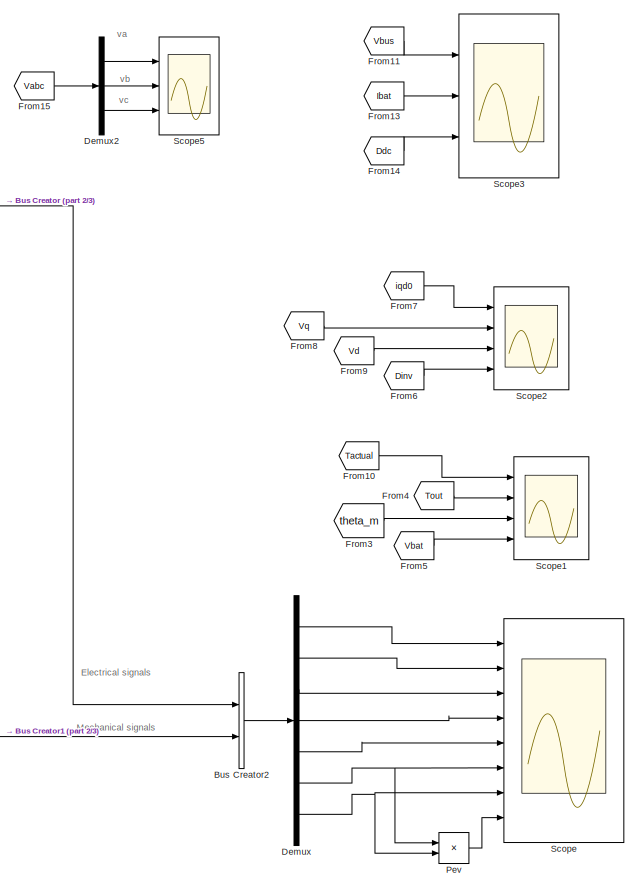
[diagram: root canvas - part 1/3, right side, full height]
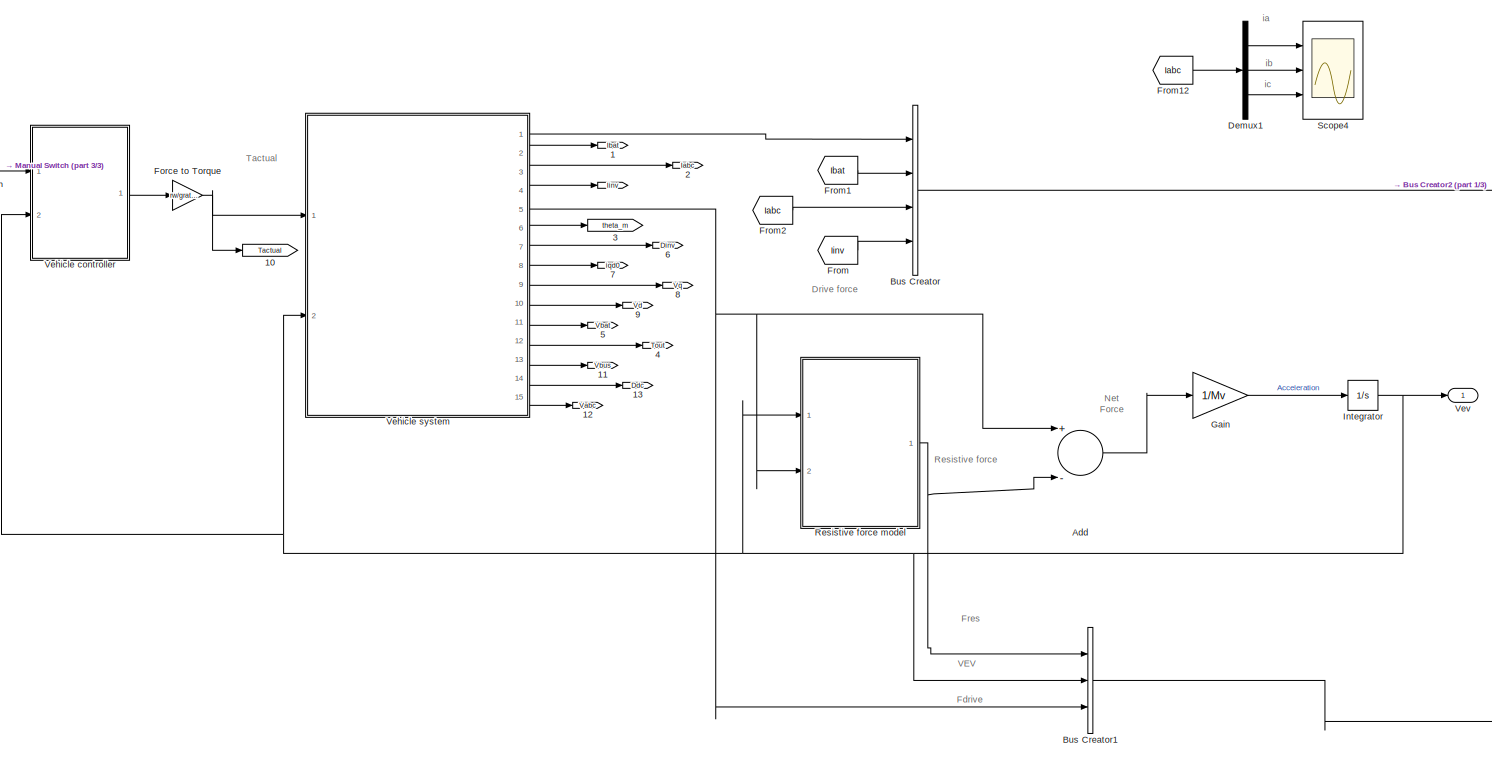
[diagram: root canvas - part 2/3, center side, full height]
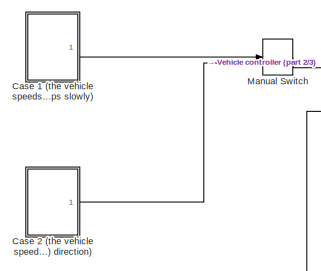
[diagram: root canvas - part 3/3, top left region]
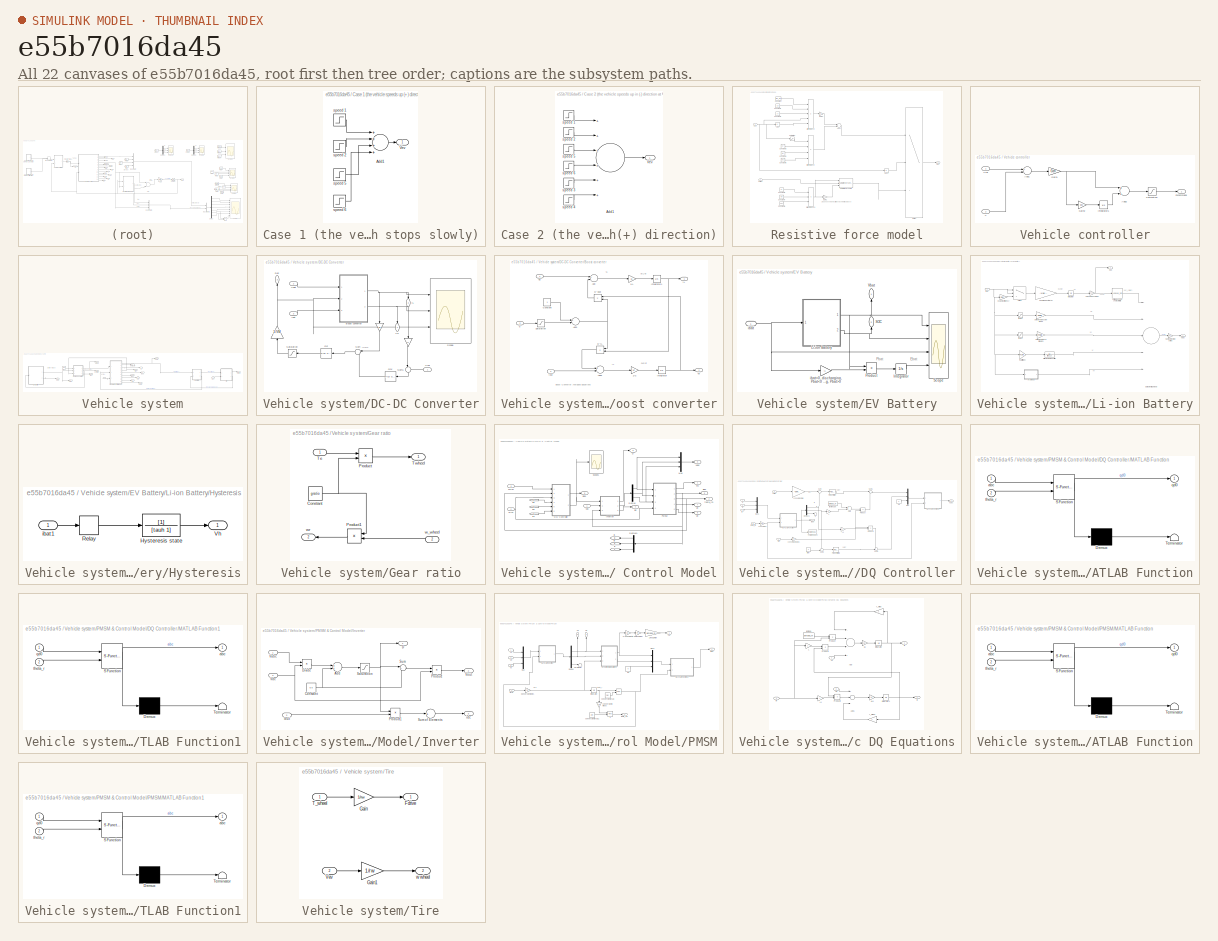
[diagram: thumbnail index - all 22 canvases of the model, root first then tree order]
MODEL slx_e55b7016da45
KIND model
CONFIG AbsTol = auto
CONFIG FixedStep = auto
CONFIG MaxStep = 1e-3
CONFIG MinStep = auto
CONFIG RelTol = 1e-3
CONFIG SampleTimeConstraint = Unconstrained
CONFIG Solver = ode15s
CONFIG SolverMode = Auto
CONFIG SolverName = ode15s
CONFIG StartTime = 0.0
CONFIG StopTime = tstop
BLOCK [Goto]  
  GotoTag = Iinv
BLOCK [Goto]  1
  GotoTag = Ibat
BLOCK [Goto]  10
  GotoTag = Tactual
BLOCK [Goto]  11
  GotoTag = Vbus
BLOCK [Goto]  12
  GotoTag = Vabc
BLOCK [Goto]  13
  GotoTag = Ddc
BLOCK [Goto]  2
  GotoTag = Iabc
BLOCK [Goto]  3
  GotoTag = theta_m
BLOCK [Goto]  4
  GotoTag = Tout
BLOCK [Goto]  5
  GotoTag = Vbat
BLOCK [Goto]  6
  GotoTag = Dinv
BLOCK [Goto]  7
  GotoTag = iqd0
BLOCK [Goto]  8
  GotoTag = Vq
BLOCK [Goto]  9
  GotoTag = Vd
BLOCK [Outport]  Vev
  IconDisplay = Port number
BLOCK [Sum] Add
  InputSameDT = off
  Inputs = +-
  OutDataTypeStr = Inherit: Inherit via internal rule
  Ports = [2, 1]
  SaturateOnIntegerOverflow = off
BLOCK [BusCreator] Bus Creator
  DisplayOption = bar
  InheritFromInputs = on
  Inputs = 4
  Ports = [4, 1]
BLOCK [BusCreator] Bus Creator1
  DisplayOption = bar
  InheritFromInputs = on
  Inputs = 3
  Ports = [3, 1]
BLOCK [BusCreator] Bus Creator2
  DisplayOption = bar
  InheritFromInputs = on
  Inputs = 2
  Ports = [2, 1]
BLOCK [SubSystem] Case 1 (the vehicle speeds up (+) direction  at first, then stops slowly)
  Ports = [0, 1]
  RequestExecContextInheritance = off
  Variant = off
BLOCK [Sum] Case 1 (the vehicle speeds up (+) direction  at first, then stops slowly)/Add1
  InputSameDT = off
  Inputs = ++++
  OutDataTypeStr = Inherit: Inherit via internal rule
  Ports = [4, 1]
  SaturateOnIntegerOverflow = off
BLOCK [Outport] Case 1 (the vehicle speeds up (+) direction  at first, then stops slowly)/Vev 
  IconDisplay = Port number
BLOCK [Step] Case 1 (the vehicle speeds up (+) direction  at first, then stops slowly)/speed 1
  After = vref_2
  Before = vref_1
  SampleTime = 0
  Time = tstop/5
BLOCK [Step] Case 1 (the vehicle speeds up (+) direction  at first, then stops slowly)/speed 2
  After = -vref_2+vref_1
  SampleTime = 0
  Time = 2*(tstop/5)
BLOCK [Step] Case 1 (the vehicle speeds up (+) direction  at first, then stops slowly)/speed 5
  After = -vref_1/2
  SampleTime = 0
  Time = 3*(tstop/5)
BLOCK [Step] Case 1 (the vehicle speeds up (+) direction  at first, then stops slowly)/speed 6
  After = -vref_1/2
  SampleTime = 0
  Time = 4*(tstop/5)
BLOCK [SubSystem] Case 2 (the vehicle speeds up in (-) direction at first, then stops slower and gets faster in (+) direction)
  Ports = [0, 1]
  RequestExecContextInheritance = off
  Variant = off
BLOCK [Sum] Case 2 (the vehicle speeds up in (-) direction at first, then stops slower and gets faster in (+) direction)/Add1
  InputSameDT = off
  Inputs = ++++++
  OutDataTypeStr = Inherit: Inherit via internal rule
  Ports = [6, 1]
  SaturateOnIntegerOverflow = off
BLOCK [Outport] Case 2 (the vehicle speeds up in (-) direction at first, then stops slower and gets faster in (+) direction)/Vev 
  IconDisplay = Port number
BLOCK [Step] Case 2 (the vehicle speeds up in (-) direction at first, then stops slower and gets faster in (+) direction)/speed 1
  After = -vref_2/2
  Before = -vref_1/2
  SampleTime = 0
  Time = tstop/7
BLOCK [Step] Case 2 (the vehicle speeds up in (-) direction at first, then stops slower and gets faster in (+) direction)/speed 2
  After = vref_2/4
  SampleTime = 0
  Time = 2*(tstop/7)
BLOCK [Step] Case 2 (the vehicle speeds up in (-) direction at first, then stops slower and gets faster in (+) direction)/speed 3
  After = vref_1/4
  SampleTime = 0
  Time = 5*(tstop/7)
BLOCK [Step] Case 2 (the vehicle speeds up in (-) direction at first, then stops slower and gets faster in (+) direction)/speed 4
  After = (vref_2-vref_1)/2
  SampleTime = 0
  Time = 6*(tstop/7)
BLOCK [Step] Case 2 (the vehicle speeds up in (-) direction at first, then stops slower and gets faster in (+) direction)/speed 5
  After = vref_2/4
  SampleTime = 0
  Time = 3*(tstop/7)
BLOCK [Step] Case 2 (the vehicle speeds up in (-) direction at first, then stops slower and gets faster in (+) direction)/speed 6
  After = vref_1/4
  SampleTime = 0
  Time = 4*(tstop/7)
BLOCK [Demux] Demux
  DisplayOption = bar
  Outputs = 7
  Ports = [1, 7]
BLOCK [Demux] Demux1
  DisplayOption = bar
  Outputs = 3
  Ports = [1, 3]
BLOCK [Demux] Demux2
  DisplayOption = bar
  Outputs = 3
  Ports = [1, 3]
BLOCK [Gain] Force to Torque
  Gain = rw/gratio
  OutDataTypeStr = Inherit: Inherit via internal rule
  ParamDataTypeStr = Inherit: Inherit via internal rule
  SaturateOnIntegerOverflow = off
BLOCK [From] From
  GotoTag = Iinv
BLOCK [From] From1
  GotoTag = Ibat
BLOCK [From] From10
  GotoTag = Tactual
BLOCK [From] From11
  GotoTag = Vbus
BLOCK [From] From12
  GotoTag = Iabc
BLOCK [From] From13
  GotoTag = Ibat
BLOCK [From] From14
  GotoTag = Ddc
BLOCK [From] From15
  GotoTag = Vabc
BLOCK [From] From2
  GotoTag = Iabc
BLOCK [From] From3
  GotoTag = theta_m
BLOCK [From] From4
  GotoTag = Tout
BLOCK [From] From5
  GotoTag = Vbat
BLOCK [From] From6
  GotoTag = Dinv
BLOCK [From] From7
  GotoTag = iqd0
BLOCK [From] From8
  GotoTag = Vq
BLOCK [From] From9
  GotoTag = Vd
BLOCK [Gain] Gain
  Gain = 1/Mv
  OutDataTypeStr = Inherit: Inherit via internal rule
  ParamDataTypeStr = Inherit: Inherit via internal rule
  SaturateOnIntegerOverflow = off
BLOCK [Integrator] Integrator
  Ports = [1, 1]
BLOCK [ManualSwitch] Manual Switch
  CurrentSetting = 0
BLOCK [Product] Pev
  InputSameDT = off
  OutDataTypeStr = Inherit: Inherit via internal rule
  Ports = [2, 1]
  RndMeth = Floor
  SaturateOnIntegerOverflow = off
BLOCK [SubSystem] Resistive force model
  Ports = [2, 1]
  RequestExecContextInheritance = off
  Variant = off
BLOCK [Abs] Resistive force model/Abs
  SaturateOnIntegerOverflow = off
  ZeroCross = off
BLOCK [Abs] Resistive force model/Abs1
  SaturateOnIntegerOverflow = off
BLOCK [Sum] Resistive force model/Add1
  InputSameDT = off
  OutDataTypeStr = Inherit: Inherit via internal rule
  Ports = [2, 1]
  SaturateOnIntegerOverflow = off
BLOCK [Constant] Resistive force model/Constant
  Value = rho_air
BLOCK [Constant] Resistive force model/Constant1
  Value = Cd
BLOCK [Constant] Resistive force model/Constant2
  Value = Av
BLOCK [Constant] Resistive force model/Constant3
  Value = Cr
BLOCK [Constant] Resistive force model/Constant4
  Value = Mv
BLOCK [Constant] Resistive force model/Constant5
  Value = 9.81
BLOCK [Constant] Resistive force model/Constant6
  Value = Cr
BLOCK [Constant] Resistive force model/Constant7
  Value = Mv
BLOCK [Constant] Resistive force model/Constant8
  Value = 9.81
BLOCK [Inport] Resistive force model/Fdrive 
  IconDisplay = Port number
  Port = 2
BLOCK [Outport] Resistive force model/Fres
  IconDisplay = Port number
BLOCK [Gain] Resistive force model/Gain1
  Gain = -1
  OutDataTypeStr = Inherit: Inherit via internal rule
  ParamDataTypeStr = Inherit: Inherit via internal rule
  SaturateOnIntegerOverflow = off
BLOCK [Gain] Resistive force model/Gain2
  Gain = 1/2
  OutDataTypeStr = Inherit: Inherit via internal rule
  ParamDataTypeStr = Inherit: Inherit via internal rule
  SaturateOnIntegerOverflow = off
BLOCK [Saturate] Resistive force model/Saturation
  InputPortMap = u0
  LowerLimit = -1
  Ports = [1, 1]
  UpperLimit = 1
BLOCK [Reference] Resistive force model/Saturation Dynamic  REF=simulink/Discontinuities/Saturation
Dynamic
  Ports = [3, 1]
  SourceBlock = simulink/Discontinuities/Saturation\nDynamic
  SourceType = Saturation Dynamic
BLOCK [Switch] Resistive force model/Switch
  InputSameDT = off
  SaturateOnIntegerOverflow = off
  ZeroCross = off
BLOCK [Inport] Resistive force model/Vev 
  IconDisplay = Port number
BLOCK [Product] Resistive force model/air resistance 
  InputSameDT = off
  Inputs = 5
  OutDataTypeStr = Inherit: Inherit via internal rule
  Ports = [5, 1]
  RndMeth = Floor
  SaturateOnIntegerOverflow = off
BLOCK [Product] Resistive force model/roll resistance
  InputSameDT = off
  Inputs = 4
  OutDataTypeStr = Inherit: Inherit via internal rule
  Ports = [4, 1]
  RndMeth = Floor
  SaturateOnIntegerOverflow = off
BLOCK [Product] Resistive force model/roll resistance1
  InputSameDT = off
  Inputs = 3
  OutDataTypeStr = Inherit: Inherit via internal rule
  Ports = [3, 1]
  RndMeth = Floor
  SaturateOnIntegerOverflow = off
BLOCK [Scope] Scope
  NumInputPorts = 8
  Ports = [8]
  ScopeSpecificationString = Simulink.scopes.TimeScopeBlockCfg('CurrentConfiguration', extmgr.ConfigurationSet(extmgr.Configuration('Core','General UI',true),extmgr.Configuration('Core','Source UI',true),extmgr.Configuration('Sources','WiredSimulink',true),extmgr.Configuration('Visuals','Time Domain',true,'SerializedDisplays',{struct('MinYLimReal','73.72575','MaxYLimReal','75.19045','YLabelReal','','MinYLimMag','  0.00000','M...<+6170ch>
BLOCK [Scope] Scope1
  NumInputPorts = 4
  Ports = [4]
  ScopeSpecificationString = Simulink.scopes.TimeScopeBlockCfg('CurrentConfiguration', extmgr.ConfigurationSet(extmgr.Configuration('Core','General UI',true),extmgr.Configuration('Core','Source UI',true),extmgr.Configuration('Sources','WiredSimulink',true,'DataLoggingVariableName','ScopeData1'),extmgr.Configuration('Visuals','Time Domain',true,'SerializedDisplays',{struct('MinYLimReal','-245.16341','MaxYLimReal','206.47065','...<+3415ch>
BLOCK [Scope] Scope2
  NumInputPorts = 4
  Ports = [4]
  ScopeSpecificationString = Simulink.scopes.TimeScopeBlockCfg('CurrentConfiguration', extmgr.ConfigurationSet(extmgr.Configuration('Core','General UI',true),extmgr.Configuration('Core','Source UI',true),extmgr.Configuration('Sources','WiredSimulink',true,'DataLoggingVariableName','ScopeData2'),extmgr.Configuration('Visuals','Time Domain',true,'SerializedDisplays',{struct('MinYLimReal','-130.14829','MaxYLimReal','310.51951','...<+3452ch>
BLOCK [Scope] Scope3
  NumInputPorts = 3
  Ports = [3]
  ScopeSpecificationString = Simulink.scopes.TimeScopeBlockCfg('CurrentConfiguration', extmgr.ConfigurationSet(extmgr.Configuration('Core','General UI',true),extmgr.Configuration('Core','Source UI',true),extmgr.Configuration('Sources','WiredSimulink',true,'DataLoggingVariableName','ScopeData2'),extmgr.Configuration('Visuals','Time Domain',true,'SerializedDisplays',{struct('MinYLimReal','-88.65186','MaxYLimReal','797.86672','Y...<+2760ch>
BLOCK [Scope] Scope4
  NumInputPorts = 3
  Ports = [3]
  ScopeSpecificationString = Simulink.scopes.TimeScopeBlockCfg('CurrentConfiguration', extmgr.ConfigurationSet(extmgr.Configuration('Core','General UI',true),extmgr.Configuration('Core','Source UI',true),extmgr.Configuration('Sources','WiredSimulink',true,'DataLoggingVariableName','ScopeData1','DataLoggingSaveFormat','Array','DataLoggingDecimation','1','DataLoggingDecimateData',true),extmgr.Configuration('Visuals','Time Domai...<+2870ch>
BLOCK [Scope] Scope5
  NumInputPorts = 3
  Ports = [3]
  ScopeSpecificationString = Simulink.scopes.TimeScopeBlockCfg('CurrentConfiguration', extmgr.ConfigurationSet(extmgr.Configuration('Core','General UI',true),extmgr.Configuration('Core','Source UI',true),extmgr.Configuration('Sources','WiredSimulink',true,'DataLoggingVariableName','ScopeData2','DataLoggingSaveFormat','Array','DataLoggingDecimation','1','DataLoggingDecimateData',true),extmgr.Configuration('Visuals','Time Domai...<+2870ch>
BLOCK [SubSystem] Vehicle controller
  Ports = [2, 1]
  RequestExecContextInheritance = off
  Variant = off
BLOCK [Sum] Vehicle controller/Add1
  InputSameDT = off
  Inputs = +-
  OutDataTypeStr = Inherit: Inherit via internal rule
  Ports = [2, 1]
  SaturateOnIntegerOverflow = off
BLOCK [Sum] Vehicle controller/Add2
  InputSameDT = off
  OutDataTypeStr = Inherit: Inherit via internal rule
  Ports = [2, 1]
  SaturateOnIntegerOverflow = off
BLOCK [Outport] Vehicle controller/Fvcommand
  IconDisplay = Port number
BLOCK [Gain] Vehicle controller/Gain1
  Gain = Gcm
  OutDataTypeStr = Inherit: Inherit via internal rule
  ParamDataTypeStr = Inherit: Inherit via internal rule
  SaturateOnIntegerOverflow = off
BLOCK [Gain] Vehicle controller/Gain2
  Gain = wz2
  OutDataTypeStr = Inherit: Inherit via internal rule
  ParamDataTypeStr = Inherit: Inherit via internal rule
  SaturateOnIntegerOverflow = off
BLOCK [Integrator] Vehicle controller/Integrator1
  Ports = [1, 1]
BLOCK [Saturate] Vehicle controller/Saturation
  InputPortMap = u0
  LowerLimit = -Fv_max
  Ports = [1, 1]
  UpperLimit = Fv_max
BLOCK [Inport] Vehicle controller/V
  IconDisplay = Port number
  Port = 2
BLOCK [Inport] Vehicle controller/Vref
  IconDisplay = Port number
BLOCK [SubSystem] Vehicle system
  Ports = [2, 15]
  RequestExecContextInheritance = off
  Variant = off
BLOCK [Inport] Vehicle system/ 
  IconDisplay = Port number
BLOCK [Outport] Vehicle system/D
  IconDisplay = Port number
  Port = 7
BLOCK [SubSystem] Vehicle system/DC-DC Converter
  Ports = [3, 3]
  RequestExecContextInheritance = off
  Variant = off
BLOCK [Gain] Vehicle system/DC-DC Converter/  
  Gain = Rs
  OutDataTypeStr = Inherit: Inherit via internal rule
  ParamDataTypeStr = Inherit: Inherit via internal rule
  SaturateOnIntegerOverflow = off
BLOCK [Gain] Vehicle system/DC-DC Converter/     
  Gain = 1/VM
  OutDataTypeStr = Inherit: Inherit via internal rule
  ParamDataTypeStr = Inherit: Inherit via internal rule
  SaturateOnIntegerOverflow = off
BLOCK [Gain] Vehicle system/DC-DC Converter/           
  Gain = H
  OutDataTypeStr = Inherit: Inherit via internal rule
  ParamDataTypeStr = Inherit: Inherit via internal rule
  SaturateOnIntegerOverflow = off
BLOCK [SubSystem] Vehicle system/DC-DC Converter/Boost converter
  Ports = [3, 2]
  RequestExecContextInheritance = off
  Variant = off
BLOCK [Gain] Vehicle system/DC-DC Converter/Boost converter/1//C
  Gain = 1/C
  OutDataTypeStr = Inherit: Inherit via internal rule
  ParamDataTypeStr = Inherit: Inherit via internal rule
  SaturateOnIntegerOverflow = off
BLOCK [Gain] Vehicle system/DC-DC Converter/Boost converter/1//L
  Gain = 1/L
  OutDataTypeStr = Inherit: Inherit via internal rule
  ParamDataTypeStr = Inherit: Inherit via internal rule
  SaturateOnIntegerOverflow = off
BLOCK [Sum] Vehicle system/DC-DC Converter/Boost converter/Add
  InputSameDT = off
  Inputs = +-
  OutDataTypeStr = Inherit: Inherit via internal rule
  Ports = [2, 1]
  SaturateOnIntegerOverflow = off
BLOCK [Sum] Vehicle system/DC-DC Converter/Boost converter/Add1
  InputSameDT = off
  Inputs = +-
  OutDataTypeStr = Inherit: Inherit via internal rule
  Ports = [2, 1]
  SaturateOnIntegerOverflow = off
BLOCK [Sum] Vehicle system/DC-DC Converter/Boost converter/Add2
  InputSameDT = off
  Inputs = +-
  OutDataTypeStr = Inherit: Inherit via internal rule
  Ports = [2, 1]
  SaturateOnIntegerOverflow = off
BLOCK [Constant] Vehicle system/DC-DC Converter/Boost converter/Constant
BLOCK [Product] Vehicle system/DC-DC Converter/Boost converter/D' Vout
  InputSameDT = off
  OutDataTypeStr = Inherit: Inherit via internal rule
  Ports = [2, 1]
  RndMeth = Floor
  SaturateOnIntegerOverflow = off
BLOCK [Product] Vehicle system/DC-DC Converter/Boost converter/D' iL
  InputSameDT = off
  OutDataTypeStr = Inherit: Inherit via internal rule
  Ports = [2, 1]
  RndMeth = Floor
  SaturateOnIntegerOverflow = off
BLOCK [Integrator] Vehicle system/DC-DC Converter/Boost converter/Integrator
  Ports = [1, 1]
BLOCK [Integrator] Vehicle system/DC-DC Converter/Boost converter/Integrator1
  Ports = [1, 1]
BLOCK [Saturate] Vehicle system/DC-DC Converter/Boost converter/Saturation
  InputPortMap = u0
  LowerLimit = 0
  Ports = [1, 1]
  UpperLimit = 1
BLOCK [Inport] Vehicle system/DC-DC Converter/Boost converter/Vg
  IconDisplay = Port number
BLOCK [Outport] Vehicle system/DC-DC Converter/Boost converter/Vo
  IconDisplay = Port number
  Port = 2
BLOCK [Inport] Vehicle system/DC-DC Converter/Boost converter/d
  IconDisplay = Port number
  Port = 2
BLOCK [Outport] Vehicle system/DC-DC Converter/Boost converter/iL
  IconDisplay = Port number
BLOCK [Inport] Vehicle system/DC-DC Converter/Boost converter/iout
  IconDisplay = Port number
  Port = 3
BLOCK [Outport] Vehicle system/DC-DC Converter/Ddc
  IconDisplay = Port number
  Port = 3
BLOCK [Reference] Vehicle system/DC-DC Converter/Gci  REF=simulink/Continuous/PID Controller
  Ports = [1, 1]
  SourceBlock = simulink/Continuous/PID Controller
  SourceType = PID 1dof
BLOCK [Reference] Vehicle system/DC-DC Converter/Gcv  REF=simulink/Continuous/PID Controller
  Ports = [1, 1]
  SourceBlock = simulink/Continuous/PID Controller
  SourceType = PID 1dof
BLOCK [Outport] Vehicle system/DC-DC Converter/IL
  IconDisplay = Port number
  Port = 2
BLOCK [Saturate] Vehicle system/DC-DC Converter/Saturation
  InputPortMap = u0
  LowerLimit = 0
  Ports = [1, 1]
  UpperLimit = 1
BLOCK [Scope] Vehicle system/DC-DC Converter/Scope
  NumInputPorts = 3
  Ports = [3]
  ScopeSpecificationString = Simulink.scopes.TimeScopeBlockCfg('CurrentConfiguration', extmgr.ConfigurationSet(extmgr.Configuration('Core','General UI',true),extmgr.Configuration('Core','Source UI',true),extmgr.Configuration('Sources','WiredSimulink',true,'DataLoggingVariableName','ScopeData1'),extmgr.Configuration('Visuals','Time Domain',true,'SerializedDisplays',{struct('MinYLimReal','-344.69429','MaxYLimReal','479.64599','...<+2685ch>
BLOCK [Sum] Vehicle system/DC-DC Converter/Sum
  IconShape = round
  InputSameDT = off
  Inputs = |-+
  OutDataTypeStr = Inherit: Inherit via internal rule
  Ports = [2, 1]
  SaturateOnIntegerOverflow = off
BLOCK [Sum] Vehicle system/DC-DC Converter/Sum1
  IconShape = round
  InputSameDT = off
  Inputs = |-+
  OutDataTypeStr = Inherit: Inherit via internal rule
  Ports = [2, 1]
  SaturateOnIntegerOverflow = off
BLOCK [Inport] Vehicle system/DC-DC Converter/Vbat
  IconDisplay = Port number
  Port = 2
BLOCK [Outport] Vehicle system/DC-DC Converter/Vo
  IconDisplay = Port number
BLOCK [Inport] Vehicle system/DC-DC Converter/Vref
  IconDisplay = Port number
BLOCK [Inport] Vehicle system/DC-DC Converter/iout
  IconDisplay = Port number
  Port = 3
BLOCK [Outport] Vehicle system/Ddc
  IconDisplay = Port number
  Port = 14
BLOCK [SubSystem] Vehicle system/EV Battery
  Ports = [1, 2]
  RequestExecContextInheritance = off
  Variant = off
BLOCK [Integrator] Vehicle system/EV Battery/Integrator
  Ports = [1, 1]
BLOCK [SubSystem] Vehicle system/EV Battery/Li-ion Battery
  Ports = [1, 2]
  RequestExecContextInheritance = off
  Variant = off
BLOCK [Gain] Vehicle system/EV Battery/Li-ion Battery/Cnom (Capacity in Ah)
  Gain = -1/(Mp*Cnom*3600)
  OutDataTypeStr = Inherit: Inherit via internal rule
  ParamDataTypeStr = Inherit: Inherit via internal rule
  SaturateOnIntegerOverflow = off
BLOCK [Gain] Vehicle system/EV Battery/Li-ion Battery/Coulomb efficiency
  Gain = etaC
  OutDataTypeStr = Inherit: Inherit via internal rule
  ParamDataTypeStr = Inherit: Inherit via internal rule
  SaturateOnIntegerOverflow = off
BLOCK [TransferFcn] Vehicle system/EV Battery/Li-ion Battery/Diffusion low-pass filter
  Denominator = [tau1 1]
BLOCK [SubSystem] Vehicle system/EV Battery/Li-ion Battery/Hysteresis
  Ports = [1, 1]
  RequestExecContextInheritance = off
  Variant = off
BLOCK [TransferFcn] Vehicle system/EV Battery/Li-ion Battery/Hysteresis/Hysteresis state
  Denominator = [tauh 1]
BLOCK [Relay] Vehicle system/EV Battery/Li-ion Battery/Hysteresis/Relay
  InputProcessing = Elements as channels (sample based)
  OffOutputValue = -Vm
  OffSwitchValue = -0.01
  OnOutputValue = Vm
  OnSwitchValue = 0.01
BLOCK [Outport] Vehicle system/EV Battery/Li-ion Battery/Hysteresis/Vh
  IconDisplay = Port number
BLOCK [Inport] Vehicle system/EV Battery/Li-ion Battery/Hysteresis/ibat1
  IconDisplay = Port number
BLOCK [Integrator] Vehicle system/EV Battery/Li-ion Battery/Integrator
  InitialCondition = SOC_0
  LimitOutput = on
  LowerSaturationLimit = SOC_0/2.5
  Ports = [1, 1]
  UpperSaturationLimit = SOC_1
BLOCK [Gain] Vehicle system/EV Battery/Li-ion Battery/Number of cells in series
  Gain = Ns
  OutDataTypeStr = Inherit: Inherit via internal rule
  ParamDataTypeStr = Inherit: Inherit via internal rule
  SaturateOnIntegerOverflow = off
BLOCK [Sum] Vehicle system/EV Battery/Li-ion Battery/Output voltage loop
  InputSameDT = off
  Inputs = +----
  OutDataTypeStr = Inherit: Inherit via internal rule
  Ports = [5, 1]
  SaturateOnIntegerOverflow = off
BLOCK [Gain] Vehicle system/EV Battery/Li-ion Battery/Percent Conversion 
  Gain = 100
  OutDataTypeStr = Inherit: Inherit via internal rule
  ParamDataTypeStr = Inherit: Inherit via internal rule
  SaturateOnIntegerOverflow = off
BLOCK [Gain] Vehicle system/EV Battery/Li-ion Battery/R1(diffision)
  Gain = R1/Mp
  OutDataTypeStr = Inherit: Inherit via internal rule
  ParamDataTypeStr = Inherit: Inherit via internal rule
  SaturateOnIntegerOverflow = off
BLOCK [Outport] Vehicle system/EV Battery/Li-ion Battery/SOC
  IconDisplay = Port number
  Port = 2
BLOCK [Gain] Vehicle system/EV Battery/Li-ion Battery/Series resistance for ibat<0
  Gain = Rn/Mp
  OutDataTypeStr = Inherit: Inherit via internal rule
  ParamDataTypeStr = Inherit: Inherit via internal rule
  SaturateOnIntegerOverflow = off
BLOCK [Gain] Vehicle system/EV Battery/Li-ion Battery/Series resistance for ibat>0
  Gain = Rp/Mp
  OutDataTypeStr = Inherit: Inherit via internal rule
  ParamDataTypeStr = Inherit: Inherit via internal rule
  SaturateOnIntegerOverflow = off
BLOCK [Switch] Vehicle system/EV Battery/Li-ion Battery/Switch
  InputSameDT = off
  SaturateOnIntegerOverflow = off
BLOCK [Outport] Vehicle system/EV Battery/Li-ion Battery/Vbat
  IconDisplay = Port number
BLOCK [Lookup_n-D] Vehicle system/EV Battery/Li-ion Battery/Voltage vs SOC characteristic
  BreakpointsForDimension1 = [0:9900]/100
  InternalRulePriority = Speed
  NumberOfTableDimensions = 1
  Ports = [1, 1]
  RndMeth = Simplest
  Table = V_soc
BLOCK [Inport] Vehicle system/EV Battery/Li-ion Battery/ibat
  IconDisplay = Port number
BLOCK [Saturate] Vehicle system/EV Battery/Li-ion Battery/ibat<0
  InputPortMap = u0
  LowerLimit = -inf
  Ports = [1, 1]
  UpperLimit = 0
BLOCK [Saturate] Vehicle system/EV Battery/Li-ion Battery/ibat>0
  InputPortMap = u0
  LowerLimit = 0
  Ports = [1, 1]
  UpperLimit = inf
BLOCK [Product] Vehicle system/EV Battery/Product
  InputSameDT = off
  OutDataTypeStr = Inherit: Inherit via internal rule
  Ports = [2, 1]
  RndMeth = Floor
  SaturateOnIntegerOverflow = off
BLOCK [Outport] Vehicle system/EV Battery/SOC
  IconDisplay = Port number
  Port = 2
BLOCK [Scope] Vehicle system/EV Battery/Scope
  NumInputPorts = 4
  Ports = [4]
  ScopeSpecificationString = Simulink.scopes.TimeScopeBlockCfg('CurrentConfiguration', extmgr.ConfigurationSet(extmgr.Configuration('Core','General UI',true),extmgr.Configuration('Core','Source UI',true),extmgr.Configuration('Sources','WiredSimulink',true),extmgr.Configuration('Visuals','Time Domain',true,'SerializedDisplays',{struct('MinYLimReal','349.36691','MaxYLimReal','375.21594','YLabelReal','','MinYLimMag','349.36691',...<+3380ch>
BLOCK [Outport] Vehicle system/EV Battery/Vbat
  IconDisplay = Port number
BLOCK [Inport] Vehicle system/EV Battery/ibat
  IconDisplay = Port number
BLOCK [Gain] Vehicle system/EV Battery/ibat>0, discharging, Pbat<0 ibat<0, charging, Pbat>0
  Gain = -1
  OutDataTypeStr = Inherit: Inherit via internal rule
  ParamDataTypeStr = Inherit: Inherit via internal rule
  SaturateOnIntegerOverflow = off
BLOCK [Outport] Vehicle system/Fdrive
  IconDisplay = Port number
  Port = 5
BLOCK [SubSystem] Vehicle system/Gear ratio
  Ports = [2, 2]
  RequestExecContextInheritance = off
  Variant = off
BLOCK [Constant] Vehicle system/Gear ratio/Constant
  Value = gratio
BLOCK [Product] Vehicle system/Gear ratio/Product
  InputSameDT = off
  OutDataTypeStr = Inherit: Inherit via internal rule
  Ports = [2, 1]
  RndMeth = Floor
  SaturateOnIntegerOverflow = off
BLOCK [Product] Vehicle system/Gear ratio/Product1
  InputSameDT = off
  OutDataTypeStr = Inherit: Inherit via internal rule
  Ports = [2, 1]
  RndMeth = Floor
  SaturateOnIntegerOverflow = off
BLOCK [Inport] Vehicle system/Gear ratio/Te
  IconDisplay = Port number
BLOCK [Outport] Vehicle system/Gear ratio/Twheel
  IconDisplay = Port number
BLOCK [Inport] Vehicle system/Gear ratio/w_wheel
  IconDisplay = Port number
  Port = 2
BLOCK [Outport] Vehicle system/Gear ratio/wr
  IconDisplay = Port number
  Port = 2
BLOCK [Outport] Vehicle system/IL=ibat
  IconDisplay = Port number
  Port = 2
BLOCK [Outport] Vehicle system/Iabc
  IconDisplay = Port number
  Port = 3
BLOCK [Outport] Vehicle system/Iinv
  IconDisplay = Port number
  Port = 4
BLOCK [SubSystem] Vehicle system/PMSM & Control Model
  Ports = [3, 9]
  RequestExecContextInheritance = off
  Variant = off
BLOCK [Outport] Vehicle system/PMSM & Control Model/D
  IconDisplay = Port number
  Port = 3
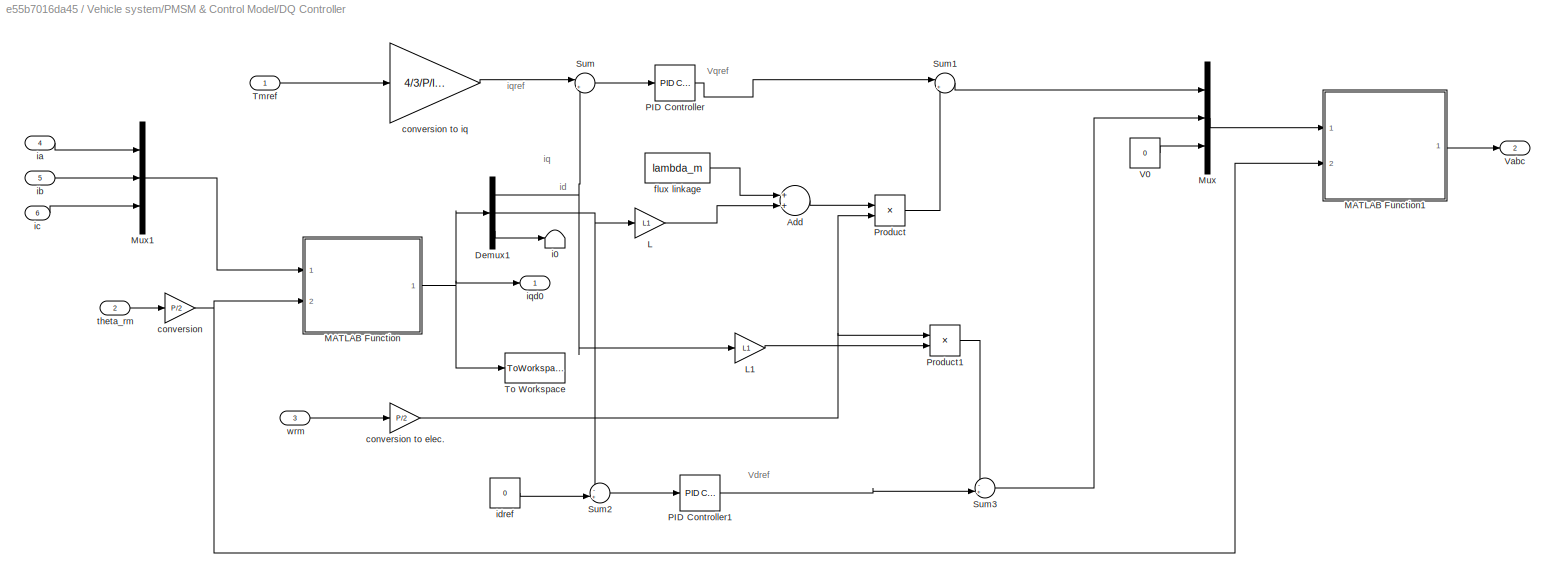
BLOCK [SubSystem] Vehicle system/PMSM & Control Model/DQ Controller
  Ports = [6, 2]
  RequestExecContextInheritance = off
  Variant = off
BLOCK [Sum] Vehicle system/PMSM & Control Model/DQ Controller/Add
  InputSameDT = off
  OutDataTypeStr = Inherit: Inherit via internal rule
  Ports = [2, 1]
  SaturateOnIntegerOverflow = off
BLOCK [Demux] Vehicle system/PMSM & Control Model/DQ Controller/Demux1
  DisplayOption = bar
  Outputs = [1 1 1]
  Ports = [1, 3]
BLOCK [Gain] Vehicle system/PMSM & Control Model/DQ Controller/L
  Gain = L1
  OutDataTypeStr = Inherit: Inherit via internal rule
  ParamDataTypeStr = Inherit: Inherit via internal rule
  SaturateOnIntegerOverflow = off
BLOCK [Gain] Vehicle system/PMSM & Control Model/DQ Controller/L1
  Gain = L1
  OutDataTypeStr = Inherit: Inherit via internal rule
  ParamDataTypeStr = Inherit: Inherit via internal rule
  SaturateOnIntegerOverflow = off
BLOCK [SubSystem] Vehicle system/PMSM & Control Model/DQ Controller/MATLAB Function
  ErrorFcn = Stateflow.Translate.translate
  PermitHierarchicalResolution = ExplicitOnly
  Ports = [2, 1]
  RequestExecContextInheritance = off
  SFBlockType = MATLAB Function
  TreatAsAtomicUnit = on
  Variant = off
BLOCK [Demux] Vehicle system/PMSM & Control Model/DQ Controller/MATLAB Function/ Demux 
  Outputs = 1
  Ports = [1, 1]
BLOCK [S-Function] Vehicle system/PMSM & Control Model/DQ Controller/MATLAB Function/ SFunction 
  EnableBusSupport = on
  FunctionName = sf_sfun
  PortCounts = [2 2]
  Ports = [2, 2]
  SFunctionDeploymentMode = off
  Tag = Stateflow S-Function EV_compensated_system_via_detailed 2
BLOCK [Terminator] Vehicle system/PMSM & Control Model/DQ Controller/MATLAB Function/ Terminator 
BLOCK [Inport] Vehicle system/PMSM & Control Model/DQ Controller/MATLAB Function/abc
  IconDisplay = Port number
BLOCK [Outport] Vehicle system/PMSM & Control Model/DQ Controller/MATLAB Function/qd0
  IconDisplay = Port number
BLOCK [Inport] Vehicle system/PMSM & Control Model/DQ Controller/MATLAB Function/theta_r
  IconDisplay = Port number
  Port = 2
BLOCK [SubSystem] Vehicle system/PMSM & Control Model/DQ Controller/MATLAB Function1
  ErrorFcn = Stateflow.Translate.translate
  PermitHierarchicalResolution = ExplicitOnly
  Ports = [2, 1]
  RequestExecContextInheritance = off
  SFBlockType = MATLAB Function
  TreatAsAtomicUnit = on
  Variant = off
BLOCK [Demux] Vehicle system/PMSM & Control Model/DQ Controller/MATLAB Function1/ Demux 
  Outputs = 1
  Ports = [1, 1]
BLOCK [S-Function] Vehicle system/PMSM & Control Model/DQ Controller/MATLAB Function1/ SFunction 
  EnableBusSupport = on
  FunctionName = sf_sfun
  PortCounts = [2 2]
  Ports = [2, 2]
  SFunctionDeploymentMode = off
  Tag = Stateflow S-Function EV_compensated_system_via_detailed 1
BLOCK [Terminator] Vehicle system/PMSM & Control Model/DQ Controller/MATLAB Function1/ Terminator 
BLOCK [Outport] Vehicle system/PMSM & Control Model/DQ Controller/MATLAB Function1/abc
  IconDisplay = Port number
BLOCK [Inport] Vehicle system/PMSM & Control Model/DQ Controller/MATLAB Function1/qd0
  IconDisplay = Port number
BLOCK [Inport] Vehicle system/PMSM & Control Model/DQ Controller/MATLAB Function1/theta_r
  IconDisplay = Port number
  Port = 2
BLOCK [Mux] Vehicle system/PMSM & Control Model/DQ Controller/Mux
  DisplayOption = bar
  Inputs = [1 1 1]
  Ports = [3, 1]
BLOCK [Mux] Vehicle system/PMSM & Control Model/DQ Controller/Mux1
  DisplayOption = bar
  Inputs = [1 1 1]
  Ports = [3, 1]
BLOCK [Reference] Vehicle system/PMSM & Control Model/DQ Controller/PID Controller  REF=simulink/Continuous/PID Controller
  Ports = [1, 1]
  SourceBlock = simulink/Continuous/PID Controller
  SourceType = PID 1dof
BLOCK [Reference] Vehicle system/PMSM & Control Model/DQ Controller/PID Controller1  REF=simulink/Continuous/PID Controller
  Ports = [1, 1]
  SourceBlock = simulink/Continuous/PID Controller
  SourceType = PID 1dof
BLOCK [Product] Vehicle system/PMSM & Control Model/DQ Controller/Product
  InputSameDT = off
  OutDataTypeStr = Inherit: Inherit via internal rule
  Ports = [2, 1]
  RndMeth = Floor
  SaturateOnIntegerOverflow = off
BLOCK [Product] Vehicle system/PMSM & Control Model/DQ Controller/Product1
  InputSameDT = off
  OutDataTypeStr = Inherit: Inherit via internal rule
  Ports = [2, 1]
  RndMeth = Floor
  SaturateOnIntegerOverflow = off
BLOCK [Sum] Vehicle system/PMSM & Control Model/DQ Controller/Sum
  IconShape = round
  InputSameDT = off
  Inputs = |+-
  OutDataTypeStr = Inherit: Inherit via internal rule
  Ports = [2, 1]
  SaturateOnIntegerOverflow = off
BLOCK [Sum] Vehicle system/PMSM & Control Model/DQ Controller/Sum1
  IconShape = round
  InputSameDT = off
  Inputs = |++
  OutDataTypeStr = Inherit: Inherit via internal rule
  Ports = [2, 1]
  SaturateOnIntegerOverflow = off
BLOCK [Sum] Vehicle system/PMSM & Control Model/DQ Controller/Sum2
  IconShape = round
  InputSameDT = off
  Inputs = -+|
  OutDataTypeStr = Inherit: Inherit via internal rule
  Ports = [2, 1]
  SaturateOnIntegerOverflow = off
BLOCK [Sum] Vehicle system/PMSM & Control Model/DQ Controller/Sum3
  IconShape = round
  InputSameDT = off
  Inputs = -+|
  OutDataTypeStr = Inherit: Inherit via internal rule
  Ports = [2, 1]
  SaturateOnIntegerOverflow = off
BLOCK [Inport] Vehicle system/PMSM & Control Model/DQ Controller/Tmref
  IconDisplay = Port number
BLOCK [ToWorkspace] Vehicle system/PMSM & Control Model/DQ Controller/To Workspace
  FixptAsFi = on
  MaxDataPoints = inf
  Ports = [1]
  SampleTime = -1
  Save2DSignal = 3-D array (concatenate along third dimension)
  SaveFormat = Structure
  VariableName = simout
BLOCK [Constant] Vehicle system/PMSM & Control Model/DQ Controller/V0
  Value = 0
BLOCK [Outport] Vehicle system/PMSM & Control Model/DQ Controller/Vabc
  IconDisplay = Port number
  Port = 2
BLOCK [Gain] Vehicle system/PMSM & Control Model/DQ Controller/conversion 
  Gain = P/2
  OutDataTypeStr = Inherit: Inherit via internal rule
  ParamDataTypeStr = Inherit: Inherit via internal rule
  SaturateOnIntegerOverflow = off
BLOCK [Gain] Vehicle system/PMSM & Control Model/DQ Controller/conversion to elec.
  Gain = P/2
  OutDataTypeStr = Inherit: Inherit via internal rule
  ParamDataTypeStr = Inherit: Inherit via internal rule
  SaturateOnIntegerOverflow = off
BLOCK [Gain] Vehicle system/PMSM & Control Model/DQ Controller/conversion to iq
  Gain = 4/3/P/lambda_m
  OutDataTypeStr = Inherit: Inherit via internal rule
  ParamDataTypeStr = Inherit: Inherit via internal rule
  SaturateOnIntegerOverflow = off
BLOCK [Constant] Vehicle system/PMSM & Control Model/DQ Controller/flux linkage
  Value = lambda_m
BLOCK [Terminator] Vehicle system/PMSM & Control Model/DQ Controller/i0
BLOCK [Inport] Vehicle system/PMSM & Control Model/DQ Controller/ia
  IconDisplay = Port number
  Port = 4
BLOCK [Inport] Vehicle system/PMSM & Control Model/DQ Controller/ib
  IconDisplay = Port number
  Port = 5
BLOCK [Inport] Vehicle system/PMSM & Control Model/DQ Controller/ic
  IconDisplay = Port number
  Port = 6
BLOCK [Constant] Vehicle system/PMSM & Control Model/DQ Controller/idref
  Value = 0
BLOCK [Outport] Vehicle system/PMSM & Control Model/DQ Controller/iqd0
  IconDisplay = Port number
BLOCK [Inport] Vehicle system/PMSM & Control Model/DQ Controller/theta_rm
  IconDisplay = Port number
  Port = 2
BLOCK [Inport] Vehicle system/PMSM & Control Model/DQ Controller/wrm
  IconDisplay = Port number
  Port = 3
BLOCK [Demux] Vehicle system/PMSM & Control Model/Demux
  DisplayOption = bar
  Outputs = 3
  Ports = [1, 3]
BLOCK [Demux] Vehicle system/PMSM & Control Model/Demux1
  DisplayOption = bar
  Outputs = 3
  Ports = [1, 3]
BLOCK [SubSystem] Vehicle system/PMSM & Control Model/Inverter
  Ports = [3, 3]
  RequestExecContextInheritance = off
  Variant = off
BLOCK [Sum] Vehicle system/PMSM & Control Model/Inverter/Add
  InputSameDT = off
  OutDataTypeStr = Inherit: Inherit via internal rule
  Ports = [2, 1]
  SaturateOnIntegerOverflow = off
BLOCK [Constant] Vehicle system/PMSM & Control Model/Inverter/Constant
  Value = 0.5
BLOCK [Outport] Vehicle system/PMSM & Control Model/Inverter/D
  IconDisplay = Port number
BLOCK [Product] Vehicle system/PMSM & Control Model/Inverter/Divide
  InputSameDT = off
  Inputs = */
  OutDataTypeStr = Inherit: Inherit via internal rule
  Ports = [2, 1]
  RndMeth = Floor
  SaturateOnIntegerOverflow = off
BLOCK [Inport] Vehicle system/PMSM & Control Model/Inverter/Iout 
  IconDisplay = Port number
  Port = 3
BLOCK [Product] Vehicle system/PMSM & Control Model/Inverter/Product
  InputSameDT = off
  OutDataTypeStr = Inherit: Inherit via internal rule
  Ports = [2, 1]
  RndMeth = Floor
  SaturateOnIntegerOverflow = off
BLOCK [Product] Vehicle system/PMSM & Control Model/Inverter/Product1
  InputSameDT = off
  OutDataTypeStr = Inherit: Inherit via internal rule
  Ports = [2, 1]
  RndMeth = Floor
  SaturateOnIntegerOverflow = off
BLOCK [Saturate] Vehicle system/PMSM & Control Model/Inverter/Saturation
  InputPortMap = u0
  LowerLimit = 0
  Ports = [1, 1]
  UpperLimit = 1
BLOCK [Sum] Vehicle system/PMSM & Control Model/Inverter/Sum
  IconShape = round
  InputSameDT = off
  Inputs = |+-
  OutDataTypeStr = Inherit: Inherit via internal rule
  Ports = [2, 1]
  SaturateOnIntegerOverflow = off
BLOCK [Sum] Vehicle system/PMSM & Control Model/Inverter/Sum of Elements
  InputSameDT = off
  Inputs = +
  OutDataTypeStr = Inherit: Inherit via internal rule
  Ports = [1, 1]
  SaturateOnIntegerOverflow = off
BLOCK [Inport] Vehicle system/PMSM & Control Model/Inverter/Vabc
  IconDisplay = Port number
BLOCK [Inport] Vehicle system/PMSM & Control Model/Inverter/Vdc
  IconDisplay = Port number
  Port = 2
BLOCK [Outport] Vehicle system/PMSM & Control Model/Inverter/Vout
  IconDisplay = Port number
  Port = 2
BLOCK [Outport] Vehicle system/PMSM & Control Model/Inverter/idc
  IconDisplay = Port number
  Port = 3
BLOCK [Mux] Vehicle system/PMSM & Control Model/Mux
  DisplayOption = bar
  Inputs = 3
  Ports = [3, 1]
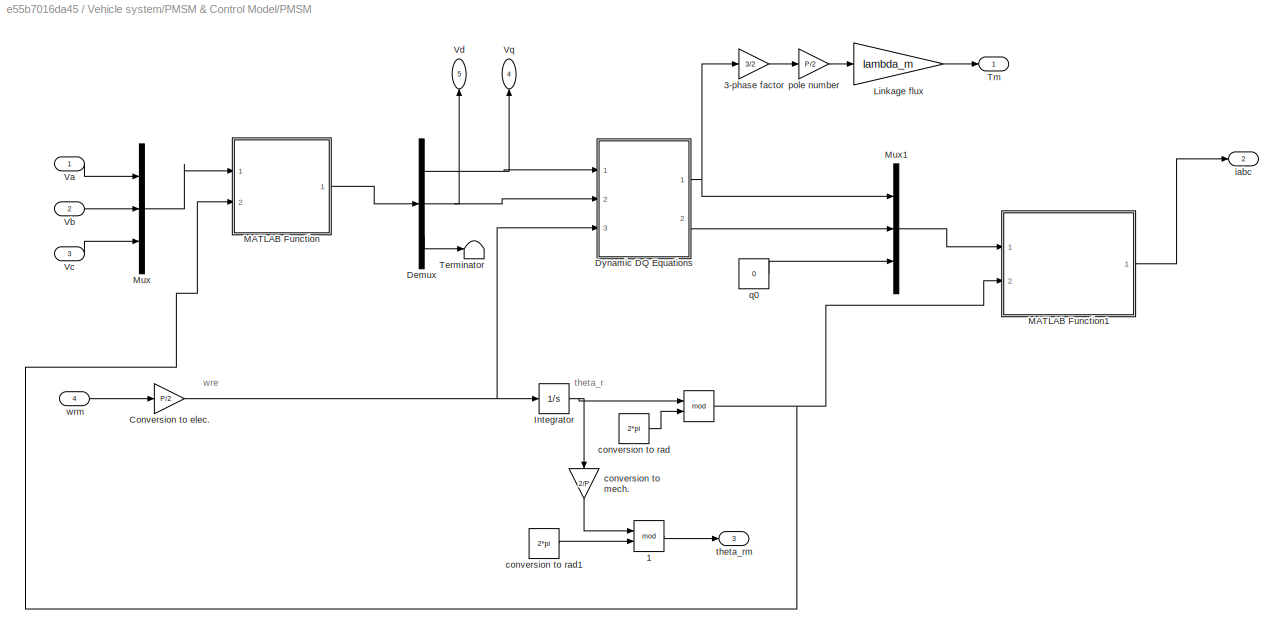
BLOCK [SubSystem] Vehicle system/PMSM & Control Model/PMSM
  Ports = [4, 5]
  RequestExecContextInheritance = off
  Variant = off
BLOCK [Math] Vehicle system/PMSM & Control Model/PMSM/  
  Operator = mod
  Ports = [2, 1]
BLOCK [Math] Vehicle system/PMSM & Control Model/PMSM/  1
  Operator = mod
  Ports = [2, 1]
BLOCK [Gain] Vehicle system/PMSM & Control Model/PMSM/3-phase factor
  Gain = 3/2
  OutDataTypeStr = Inherit: Inherit via internal rule
  ParamDataTypeStr = Inherit: Inherit via internal rule
  SaturateOnIntegerOverflow = off
BLOCK [Gain] Vehicle system/PMSM & Control Model/PMSM/Conversion to elec.
  Gain = P/2
  OutDataTypeStr = Inherit: Inherit via internal rule
  ParamDataTypeStr = Inherit: Inherit via internal rule
  SaturateOnIntegerOverflow = off
BLOCK [Demux] Vehicle system/PMSM & Control Model/PMSM/Demux
  DisplayOption = bar
  Outputs = 3
  Ports = [1, 3]
BLOCK [SubSystem] Vehicle system/PMSM & Control Model/PMSM/Dynamic DQ Equations
  Ports = [3, 2]
  RequestExecContextInheritance = off
  Variant = off
BLOCK [Gain] Vehicle system/PMSM & Control Model/PMSM/Dynamic DQ Equations/1//L
  Gain = 1/L
  OutDataTypeStr = Inherit: Inherit via internal rule
  ParamDataTypeStr = Inherit: Inherit via internal rule
  SaturateOnIntegerOverflow = off
BLOCK [Gain] Vehicle system/PMSM & Control Model/PMSM/Dynamic DQ Equations/1//L1
  Gain = 1/L
  OutDataTypeStr = Inherit: Inherit via internal rule
  ParamDataTypeStr = Inherit: Inherit via internal rule
  SaturateOnIntegerOverflow = off
BLOCK [Sum] Vehicle system/PMSM & Control Model/PMSM/Dynamic DQ Equations/Add
  InputSameDT = off
  Inputs = ---+
  OutDataTypeStr = Inherit: Inherit via internal rule
  Ports = [4, 1]
  SaturateOnIntegerOverflow = off
BLOCK [Sum] Vehicle system/PMSM & Control Model/PMSM/Dynamic DQ Equations/Add1
  InputSameDT = off
  Inputs = ++-
  OutDataTypeStr = Inherit: Inherit via internal rule
  Ports = [3, 1]
  SaturateOnIntegerOverflow = off
BLOCK [Integrator] Vehicle system/PMSM & Control Model/PMSM/Dynamic DQ Equations/Integrator
  Ports = [1, 1]
BLOCK [Integrator] Vehicle system/PMSM & Control Model/PMSM/Dynamic DQ Equations/Integrator1
  Ports = [1, 1]
BLOCK [Gain] Vehicle system/PMSM & Control Model/PMSM/Dynamic DQ Equations/L
  Gain = L
  OutDataTypeStr = Inherit: Inherit via internal rule
  ParamDataTypeStr = Inherit: Inherit via internal rule
  SaturateOnIntegerOverflow = off
BLOCK [Gain] Vehicle system/PMSM & Control Model/PMSM/Dynamic DQ Equations/L1
  Gain = L
  OutDataTypeStr = Inherit: Inherit via internal rule
  ParamDataTypeStr = Inherit: Inherit via internal rule
  SaturateOnIntegerOverflow = off
BLOCK [Product] Vehicle system/PMSM & Control Model/PMSM/Dynamic DQ Equations/Product
  InputSameDT = off
  OutDataTypeStr = Inherit: Inherit via internal rule
  Ports = [2, 1]
  RndMeth = Floor
  SaturateOnIntegerOverflow = off
BLOCK [Product] Vehicle system/PMSM & Control Model/PMSM/Dynamic DQ Equations/Product1
  InputSameDT = off
  OutDataTypeStr = Inherit: Inherit via internal rule
  Ports = [2, 1]
  RndMeth = Floor
  SaturateOnIntegerOverflow = off
BLOCK [Product] Vehicle system/PMSM & Control Model/PMSM/Dynamic DQ Equations/Product2
  InputSameDT = off
  OutDataTypeStr = Inherit: Inherit via internal rule
  Ports = [2, 1]
  RndMeth = Floor
  SaturateOnIntegerOverflow = off
BLOCK [Inport] Vehicle system/PMSM & Control Model/PMSM/Dynamic DQ Equations/Vd
  IconDisplay = Port number
  Port = 2
BLOCK [Inport] Vehicle system/PMSM & Control Model/PMSM/Dynamic DQ Equations/Vq
  IconDisplay = Port number
BLOCK [Outport] Vehicle system/PMSM & Control Model/PMSM/Dynamic DQ Equations/id
  IconDisplay = Port number
  Port = 2
BLOCK [Outport] Vehicle system/PMSM & Control Model/PMSM/Dynamic DQ Equations/iq
  IconDisplay = Port number
BLOCK [Constant] Vehicle system/PMSM & Control Model/PMSM/Dynamic DQ Equations/lambda
  Value = lambda_m
BLOCK [Gain] Vehicle system/PMSM & Control Model/PMSM/Dynamic DQ Equations/r_wind
  Gain = r
  OutDataTypeStr = Inherit: Inherit via internal rule
  ParamDataTypeStr = Inherit: Inherit via internal rule
  SaturateOnIntegerOverflow = off
BLOCK [Gain] Vehicle system/PMSM & Control Model/PMSM/Dynamic DQ Equations/r_wind1
  Gain = r
  OutDataTypeStr = Inherit: Inherit via internal rule
  ParamDataTypeStr = Inherit: Inherit via internal rule
  SaturateOnIntegerOverflow = off
BLOCK [Inport] Vehicle system/PMSM & Control Model/PMSM/Dynamic DQ Equations/wr
  IconDisplay = Port number
  Port = 3
BLOCK [Integrator] Vehicle system/PMSM & Control Model/PMSM/Integrator
  Ports = [1, 1]
BLOCK [Gain] Vehicle system/PMSM & Control Model/PMSM/Linkage flux
  Gain = lambda_m
  OutDataTypeStr = Inherit: Inherit via internal rule
  ParamDataTypeStr = Inherit: Inherit via internal rule
  SaturateOnIntegerOverflow = off
BLOCK [SubSystem] Vehicle system/PMSM & Control Model/PMSM/MATLAB Function
  ErrorFcn = Stateflow.Translate.translate
  PermitHierarchicalResolution = ExplicitOnly
  Ports = [2, 1]
  RequestExecContextInheritance = off
  SFBlockType = MATLAB Function
  TreatAsAtomicUnit = on
  Variant = off
BLOCK [Demux] Vehicle system/PMSM & Control Model/PMSM/MATLAB Function/ Demux 
  Outputs = 1
  Ports = [1, 1]
BLOCK [S-Function] Vehicle system/PMSM & Control Model/PMSM/MATLAB Function/ SFunction 
  EnableBusSupport = on
  FunctionName = sf_sfun
  PortCounts = [2 2]
  Ports = [2, 2]
  SFunctionDeploymentMode = off
  Tag = Stateflow S-Function EV_compensated_system_via_detailed 3
BLOCK [Terminator] Vehicle system/PMSM & Control Model/PMSM/MATLAB Function/ Terminator 
BLOCK [Inport] Vehicle system/PMSM & Control Model/PMSM/MATLAB Function/abc
  IconDisplay = Port number
BLOCK [Outport] Vehicle system/PMSM & Control Model/PMSM/MATLAB Function/qd0
  IconDisplay = Port number
BLOCK [Inport] Vehicle system/PMSM & Control Model/PMSM/MATLAB Function/theta_r
  IconDisplay = Port number
  Port = 2
BLOCK [SubSystem] Vehicle system/PMSM & Control Model/PMSM/MATLAB Function1
  ErrorFcn = Stateflow.Translate.translate
  PermitHierarchicalResolution = ExplicitOnly
  Ports = [2, 1]
  RequestExecContextInheritance = off
  SFBlockType = MATLAB Function
  TreatAsAtomicUnit = on
  Variant = off
BLOCK [Demux] Vehicle system/PMSM & Control Model/PMSM/MATLAB Function1/ Demux 
  Outputs = 1
  Ports = [1, 1]
BLOCK [S-Function] Vehicle system/PMSM & Control Model/PMSM/MATLAB Function1/ SFunction 
  EnableBusSupport = on
  FunctionName = sf_sfun
  PortCounts = [2 2]
  Ports = [2, 2]
  SFunctionDeploymentMode = off
  Tag = Stateflow S-Function EV_compensated_system_via_detailed 4
BLOCK [Terminator] Vehicle system/PMSM & Control Model/PMSM/MATLAB Function1/ Terminator 
BLOCK [Outport] Vehicle system/PMSM & Control Model/PMSM/MATLAB Function1/abc
  IconDisplay = Port number
BLOCK [Inport] Vehicle system/PMSM & Control Model/PMSM/MATLAB Function1/qd0
  IconDisplay = Port number
BLOCK [Inport] Vehicle system/PMSM & Control Model/PMSM/MATLAB Function1/theta_r
  IconDisplay = Port number
  Port = 2
BLOCK [Mux] Vehicle system/PMSM & Control Model/PMSM/Mux
  DisplayOption = bar
  Inputs = 3
  Ports = [3, 1]
BLOCK [Mux] Vehicle system/PMSM & Control Model/PMSM/Mux1
  DisplayOption = bar
  Inputs = 3
  Ports = [3, 1]
BLOCK [Terminator] Vehicle system/PMSM & Control Model/PMSM/Terminator
BLOCK [Outport] Vehicle system/PMSM & Control Model/PMSM/Tm
  IconDisplay = Port number
BLOCK [Inport] Vehicle system/PMSM & Control Model/PMSM/Va
  IconDisplay = Port number
BLOCK [Inport] Vehicle system/PMSM & Control Model/PMSM/Vb
  IconDisplay = Port number
  Port = 2
BLOCK [Inport] Vehicle system/PMSM & Control Model/PMSM/Vc
  IconDisplay = Port number
  Port = 3
BLOCK [Outport] Vehicle system/PMSM & Control Model/PMSM/Vd
  IconDisplay = Port number
  Port = 5
BLOCK [Outport] Vehicle system/PMSM & Control Model/PMSM/Vq
  IconDisplay = Port number
  Port = 4
BLOCK [Gain] Vehicle system/PMSM & Control Model/PMSM/conversion to mech.
  Gain = 2/P
  OutDataTypeStr = Inherit: Inherit via internal rule
  ParamDataTypeStr = Inherit: Inherit via internal rule
  SaturateOnIntegerOverflow = off
BLOCK [Constant] Vehicle system/PMSM & Control Model/PMSM/conversion to rad
  Value = 2*pi
BLOCK [Constant] Vehicle system/PMSM & Control Model/PMSM/conversion to rad1
  Value = 2*pi
BLOCK [Outport] Vehicle system/PMSM & Control Model/PMSM/iabc 
  IconDisplay = Port number
  Port = 2
BLOCK [Gain] Vehicle system/PMSM & Control Model/PMSM/pole number
  Gain = P/2
  OutDataTypeStr = Inherit: Inherit via internal rule
  ParamDataTypeStr = Inherit: Inherit via internal rule
  SaturateOnIntegerOverflow = off
BLOCK [Constant] Vehicle system/PMSM & Control Model/PMSM/q0
  Value = 0
BLOCK [Outport] Vehicle system/PMSM & Control Model/PMSM/theta_rm
  IconDisplay = Port number
  Port = 3
BLOCK [Inport] Vehicle system/PMSM & Control Model/PMSM/wrm
  IconDisplay = Port number
  Port = 4
BLOCK [Scope] Vehicle system/PMSM & Control Model/Scope1
  Ports = [1]
  ScopeSpecificationString = Simulink.scopes.TimeScopeBlockCfg('CurrentConfiguration', extmgr.ConfigurationSet(extmgr.Configuration('Core','General UI',true),extmgr.Configuration('Core','Source UI',true),extmgr.Configuration('Sources','WiredSimulink',true,'DataLoggingVariableName','ScopeData1','DataLoggingSaveFormat','Array','DataLoggingDecimation','1','DataLoggingDecimateData',true),extmgr.Configuration('Visuals','Time Domai...<+1538ch>
BLOCK [Outport] Vehicle system/PMSM & Control Model/Tm
  IconDisplay = Port number
BLOCK [Inport] Vehicle system/PMSM & Control Model/Tmref
  IconDisplay = Port number
  Port = 3
BLOCK [Outport] Vehicle system/PMSM & Control Model/Vabc
  IconDisplay = Port number
  Port = 9
BLOCK [Outport] Vehicle system/PMSM & Control Model/Vd
  IconDisplay = Port number
  Port = 8
BLOCK [Inport] Vehicle system/PMSM & Control Model/Vdc
  IconDisplay = Port number
BLOCK [Outport] Vehicle system/PMSM & Control Model/Vq
  IconDisplay = Port number
  Port = 7
BLOCK [Goto] Vehicle system/PMSM & Control Model/ia
  GotoTag = ia
BLOCK [From] Vehicle system/PMSM & Control Model/ia1
  GotoTag = ia
BLOCK [Outport] Vehicle system/PMSM & Control Model/iabc
  IconDisplay = Port number
  Port = 6
BLOCK [Goto] Vehicle system/PMSM & Control Model/ib
  GotoTag = ib
BLOCK [From] Vehicle system/PMSM & Control Model/ib1
  GotoTag = ib
BLOCK [Goto] Vehicle system/PMSM & Control Model/ic
  GotoTag = ic
BLOCK [From] Vehicle system/PMSM & Control Model/ic1
  GotoTag = ic
BLOCK [Outport] Vehicle system/PMSM & Control Model/idc
  IconDisplay = Port number
  Port = 4
BLOCK [Outport] Vehicle system/PMSM & Control Model/iqd0
  IconDisplay = Port number
  Port = 5
BLOCK [Outport] Vehicle system/PMSM & Control Model/theta_rm
  IconDisplay = Port number
  Port = 2
BLOCK [Inport] Vehicle system/PMSM & Control Model/wrm
  IconDisplay = Port number
  Port = 2
BLOCK [Outport] Vehicle system/SOC
  IconDisplay = Port number
BLOCK [SubSystem] Vehicle system/Tire
  Ports = [2, 2]
  RequestExecContextInheritance = off
  Variant = off
BLOCK [Outport] Vehicle system/Tire/Fdrive
  IconDisplay = Port number
BLOCK [Gain] Vehicle system/Tire/Gain
  Gain = 1/rw
  OutDataTypeStr = Inherit: Inherit via internal rule
  ParamDataTypeStr = Inherit: Inherit via internal rule
  SaturateOnIntegerOverflow = off
BLOCK [Gain] Vehicle system/Tire/Gain1
  Gain = 1/rw
  OutDataTypeStr = Inherit: Inherit via internal rule
  ParamDataTypeStr = Inherit: Inherit via internal rule
  SaturateOnIntegerOverflow = off
BLOCK [Inport] Vehicle system/Tire/T_wheel
  IconDisplay = Port number
BLOCK [Inport] Vehicle system/Tire/Vev
  IconDisplay = Port number
  Port = 2
BLOCK [Outport] Vehicle system/Tire/w wheel
  IconDisplay = Port number
  Port = 2
BLOCK [Outport] Vehicle system/Tout
  IconDisplay = Port number
  Port = 12
BLOCK [Outport] Vehicle system/Vabc
  IconDisplay = Port number
  Port = 15
BLOCK [Outport] Vehicle system/Vbat
  IconDisplay = Port number
  Port = 11
BLOCK [Outport] Vehicle system/Vbus
  IconDisplay = Port number
  Port = 13
BLOCK [Outport] Vehicle system/Vd
  IconDisplay = Port number
  Port = 10
BLOCK [Inport] Vehicle system/Vev
  IconDisplay = Port number
  Port = 2
BLOCK [Outport] Vehicle system/Vq
  IconDisplay = Port number
  Port = 9
BLOCK [Constant] Vehicle system/Vref
  Value = H*Vo
BLOCK [Outport] Vehicle system/iqd0
  IconDisplay = Port number
  Port = 8
BLOCK [Outport] Vehicle system/theta_rm
  IconDisplay = Port number
  Port = 6
ANNOTATION (root): Resistive force
ANNOTATION (root): Tactual
ANNOTATION (root): Drive force
ANNOTATION (root): Electrical signals
ANNOTATION (root): Fdrive
ANNOTATION (root): Fres
ANNOTATION (root): Mechanical signals
ANNOTATION (root): Net Force
ANNOTATION (root): VEV
ANNOTATION (root): ia
ANNOTATION (root): ib
ANNOTATION (root): ic
ANNOTATION (root): va
ANNOTATION (root): vb
ANNOTATION (root): vc
ANNOTATION Resistive force model: Stopped vehicle must first overcome roll resistance
ANNOTATION Vehicle system: Tactual
ANNOTATION Vehicle system: battery voltage
ANNOTATION Vehicle system: DC bus voltage
ANNOTATION Vehicle system/DC-DC Converter: iL*Rs
ANNOTATION Vehicle system/DC-DC Converter/Boost converter: Boost Converter Averaged Equations
ANNOTATION Vehicle system/DC-DC Converter/Boost converter: VL
ANNOTATION Vehicle system/DC-DC Converter/Boost converter: dVc/dt
ANNOTATION Vehicle system/DC-DC Converter/Boost converter: diL/dt
ANNOTATION Vehicle system/DC-DC Converter/Boost converter: ic
ANNOTATION Vehicle system/EV Battery: Ebat
ANNOTATION Vehicle system/EV Battery: Pbat
ANNOTATION Vehicle system/EV Battery/Li-ion Battery: SOC(%)
ANNOTATION Vehicle system/EV Battery/Li-ion Battery: Vh
ANNOTATION Vehicle system/EV Battery/Li-ion Battery: Vn
ANNOTATION Vehicle system/EV Battery/Li-ion Battery: Voc_cell (Vz)
ANNOTATION Vehicle system/EV Battery/Li-ion Battery: Vp
ANNOTATION Vehicle system/EV Battery/Li-ion Battery: Vr
ANNOTATION Vehicle system/EV Battery/Li-ion Battery: Vz
ANNOTATION Vehicle system/EV Battery/Li-ion Battery: dVz/dt
ANNOTATION Vehicle system/PMSM & Control Model/DQ Controller: Vdref
ANNOTATION Vehicle system/PMSM & Control Model/DQ Controller: Vqref
ANNOTATION Vehicle system/PMSM & Control Model/DQ Controller: id
ANNOTATION Vehicle system/PMSM & Control Model/DQ Controller: iq
ANNOTATION Vehicle system/PMSM & Control Model/DQ Controller: iqref
ANNOTATION Vehicle system/PMSM & Control Model/PMSM: theta_r
ANNOTATION Vehicle system/PMSM & Control Model/PMSM: wre
LINE Add:1 -> Gain:1
LINE Bus Creator1:1 -> Bus Creator2:2
LINE Bus Creator2:1 -> Demux:1
LINE Bus Creator:1 -> Bus Creator2:1
LINE Case 1 (the vehicle speeds up (+) direction  at first, then stops slowly)/Add1:1 -> Case 1 (the vehicle speeds up (+) direction  at first, then stops slowly)/Vev :1
LINE Case 1 (the vehicle speeds up (+) direction  at first, then stops slowly)/speed 1:1 -> Case 1 (the vehicle speeds up (+) direction  at first, then stops slowly)/Add1:1
LINE Case 1 (the vehicle speeds up (+) direction  at first, then stops slowly)/speed 2:1 -> Case 1 (the vehicle speeds up (+) direction  at first, then stops slowly)/Add1:2
LINE Case 1 (the vehicle speeds up (+) direction  at first, then stops slowly)/speed 5:1 -> Case 1 (the vehicle speeds up (+) direction  at first, then stops slowly)/Add1:3
LINE Case 1 (the vehicle speeds up (+) direction  at first, then stops slowly)/speed 6:1 -> Case 1 (the vehicle speeds up (+) direction  at first, then stops slowly)/Add1:4
LINE Case 1 (the vehicle speeds up (+) direction  at first, then stops slowly):1 -> Manual Switch:1
LINE Case 2 (the vehicle speeds up in (-) direction at first, then stops slower and gets faster in (+) direction)/Add1:1 -> Case 2 (the vehicle speeds up in (-) direction at first, then stops slower and gets faster in (+) direction)/Vev :1
LINE Case 2 (the vehicle speeds up in (-) direction at first, then stops slower and gets faster in (+) direction)/speed 1:1 -> Case 2 (the vehicle speeds up in (-) direction at first, then stops slower and gets faster in (+) direction)/Add1:1
LINE Case 2 (the vehicle speeds up in (-) direction at first, then stops slower and gets faster in (+) direction)/speed 2:1 -> Case 2 (the vehicle speeds up in (-) direction at first, then stops slower and gets faster in (+) direction)/Add1:2
LINE Case 2 (the vehicle speeds up in (-) direction at first, then stops slower and gets faster in (+) direction)/speed 3:1 -> Case 2 (the vehicle speeds up in (-) direction at first, then stops slower and gets faster in (+) direction)/Add1:5
LINE Case 2 (the vehicle speeds up in (-) direction at first, then stops slower and gets faster in (+) direction)/speed 4:1 -> Case 2 (the vehicle speeds up in (-) direction at first, then stops slower and gets faster in (+) direction)/Add1:6
LINE Case 2 (the vehicle speeds up in (-) direction at first, then stops slower and gets faster in (+) direction)/speed 5:1 -> Case 2 (the vehicle speeds up in (-) direction at first, then stops slower and gets faster in (+) direction)/Add1:3
LINE Case 2 (the vehicle speeds up in (-) direction at first, then stops slower and gets faster in (+) direction)/speed 6:1 -> Case 2 (the vehicle speeds up in (-) direction at first, then stops slower and gets faster in (+) direction)/Add1:4
LINE Case 2 (the vehicle speeds up in (-) direction at first, then stops slower and gets faster in (+) direction):1 -> Manual Switch:2
LINE Demux1:1 -> Scope4:1
LINE Demux1:2 -> Scope4:2
LINE Demux1:3 -> Scope4:3
LINE Demux2:1 -> Scope5:1
LINE Demux2:2 -> Scope5:2
LINE Demux2:3 -> Scope5:3
LINE Demux:1 -> Scope:1
LINE Demux:2 -> Scope:2
LINE Demux:3 -> Scope:3
LINE Demux:4 -> Scope:4
LINE Demux:5 -> Scope:5
NET Demux:6 -> Pev:1, Scope:6
NET Demux:7 -> Pev:2, Scope:7
NET Force to Torque:1 ->  10:1, Vehicle system:1
LINE From10:1 -> Scope1:1
LINE From11:1 -> Scope3:1
LINE From12:1 -> Demux1:1
LINE From13:1 -> Scope3:2
LINE From14:1 -> Scope3:3
LINE From15:1 -> Demux2:1
LINE From1:1 -> Bus Creator:2
LINE From2:1 -> Bus Creator:3
LINE From3:1 -> Scope1:3
LINE From4:1 -> Scope1:2
LINE From5:1 -> Scope1:4
LINE From6:1 -> Scope2:4
LINE From7:1 -> Scope2:1
LINE From8:1 -> Scope2:2
LINE From9:1 -> Scope2:3
LINE From:1 -> Bus Creator:4
LINE Gain:1 -> Integrator:1
NET Integrator:1 ->  Vev:1, Bus Creator1:2, Resistive force model:1, Vehicle controller:2, Vehicle system:2
LINE Manual Switch:1 -> Vehicle controller:1
LINE Pev:1 -> Scope:8
LINE Resistive force model/Abs1:1 -> Resistive force model/Switch:2
LINE Resistive force model/Abs:1 -> Resistive force model/air resistance :5
LINE Resistive force model/Add1:1 -> Resistive force model/Switch:1
LINE Resistive force model/Constant1:1 -> Resistive force model/air resistance :2
LINE Resistive force model/Constant2:1 -> Resistive force model/air resistance :3
LINE Resistive force model/Constant3:1 -> Resistive force model/roll resistance:2
LINE Resistive force model/Constant4:1 -> Resistive force model/roll resistance:3
LINE Resistive force model/Constant5:1 -> Resistive force model/roll resistance:4
LINE Resistive force model/Constant6:1 -> Resistive force model/roll resistance1:1
LINE Resistive force model/Constant7:1 -> Resistive force model/roll resistance1:2
LINE Resistive force model/Constant8:1 -> Resistive force model/roll resistance1:3
LINE Resistive force model/Constant:1 -> Resistive force model/air resistance :1
LINE Resistive force model/Fdrive :1 -> Resistive force model/Saturation Dynamic:2
LINE Resistive force model/Gain1:1 -> Resistive force model/Saturation Dynamic:3
LINE Resistive force model/Gain2:1 -> Resistive force model/Add1:1
LINE Resistive force model/Saturation Dynamic:1 -> Resistive force model/Switch:3
LINE Resistive force model/Saturation:1 -> Resistive force model/roll resistance:1
LINE Resistive force model/Switch:1 -> Resistive force model/Fres:1
NET Resistive force model/Vev :1 -> Resistive force model/Abs1:1, Resistive force model/Abs:1, Resistive force model/Saturation:1, Resistive force model/air resistance :4
LINE Resistive force model/air resistance :1 -> Resistive force model/Gain2:1
NET Resistive force model/roll resistance1:1 -> Resistive force model/Gain1:1, Resistive force model/Saturation Dynamic:1
LINE Resistive force model/roll resistance:1 -> Resistive force model/Add1:2
NET Resistive force model:1 -> Add:2, Bus Creator1:1
LINE Vehicle controller/Add1:1 -> Vehicle controller/Gain1:1
LINE Vehicle controller/Add2:1 -> Vehicle controller/Saturation:1
NET Vehicle controller/Gain1:1 -> Vehicle controller/Add2:1, Vehicle controller/Gain2:1
LINE Vehicle controller/Gain2:1 -> Vehicle controller/Integrator1:1
LINE Vehicle controller/Integrator1:1 -> Vehicle controller/Add2:2
LINE Vehicle controller/Saturation:1 -> Vehicle controller/Fvcommand:1
LINE Vehicle controller/V:1 -> Vehicle controller/Add1:2
LINE Vehicle controller/Vref:1 -> Vehicle controller/Add1:1
LINE Vehicle controller:1 -> Force to Torque:1
LINE Vehicle system/ :1 -> Vehicle system/PMSM & Control Model:3
LINE Vehicle system/DC-DC Converter/           :1 -> Vehicle system/DC-DC Converter/Sum1:1
NET Vehicle system/DC-DC Converter/     :1 -> Vehicle system/DC-DC Converter/Boost converter:2, Vehicle system/DC-DC Converter/Ddc:1, Vehicle system/DC-DC Converter/Scope:3
LINE Vehicle system/DC-DC Converter/  :1 -> Vehicle system/DC-DC Converter/Sum:1
LINE Vehicle system/DC-DC Converter/Boost converter/1//C:1 -> Vehicle system/DC-DC Converter/Boost converter/Integrator:1
LINE Vehicle system/DC-DC Converter/Boost converter/1//L:1 -> Vehicle system/DC-DC Converter/Boost converter/Integrator1:1
NET Vehicle system/DC-DC Converter/Boost converter/Add1:1 -> Vehicle system/DC-DC Converter/Boost converter/D' Vout:2, Vehicle system/DC-DC Converter/Boost converter/D' iL:1
LINE Vehicle system/DC-DC Converter/Boost converter/Add2:1 -> Vehicle system/DC-DC Converter/Boost converter/1//C:1
LINE Vehicle system/DC-DC Converter/Boost converter/Add:1 -> Vehicle system/DC-DC Converter/Boost converter/1//L:1
LINE Vehicle system/DC-DC Converter/Boost converter/Constant:1 -> Vehicle system/DC-DC Converter/Boost converter/Add1:1
LINE Vehicle system/DC-DC Converter/Boost converter/D' Vout:1 -> Vehicle system/DC-DC Converter/Boost converter/Add:2
LINE Vehicle system/DC-DC Converter/Boost converter/D' iL:1 -> Vehicle system/DC-DC Converter/Boost converter/Add2:1
NET Vehicle system/DC-DC Converter/Boost converter/Integrator1:1 -> Vehicle system/DC-DC Converter/Boost converter/D' iL:2, Vehicle system/DC-DC Converter/Boost converter/iL:1
NET Vehicle system/DC-DC Converter/Boost converter/Integrator:1 -> Vehicle system/DC-DC Converter/Boost converter/D' Vout:1, Vehicle system/DC-DC Converter/Boost converter/Vo:1
LINE Vehicle system/DC-DC Converter/Boost converter/Saturation:1 -> Vehicle system/DC-DC Converter/Boost converter/Add1:2
LINE Vehicle system/DC-DC Converter/Boost converter/Vg:1 -> Vehicle system/DC-DC Converter/Boost converter/Add:1
LINE Vehicle system/DC-DC Converter/Boost converter/d:1 -> Vehicle system/DC-DC Converter/Boost converter/Saturation:1
LINE Vehicle system/DC-DC Converter/Boost converter/iout:1 -> Vehicle system/DC-DC Converter/Boost converter/Add2:2
NET Vehicle system/DC-DC Converter/Boost converter:1 -> Vehicle system/DC-DC Converter/  :1, Vehicle system/DC-DC Converter/IL:1, Vehicle system/DC-DC Converter/Scope:1
NET Vehicle system/DC-DC Converter/Boost converter:2 -> Vehicle system/DC-DC Converter/           :1, Vehicle system/DC-DC Converter/Scope:2, Vehicle system/DC-DC Converter/Vo:1
LINE Vehicle system/DC-DC Converter/Gci:1 -> Vehicle system/DC-DC Converter/Saturation:1
LINE Vehicle system/DC-DC Converter/Gcv:1 -> Vehicle system/DC-DC Converter/Sum:2
LINE Vehicle system/DC-DC Converter/Saturation:1 -> Vehicle system/DC-DC Converter/     :1
LINE Vehicle system/DC-DC Converter/Sum1:1 -> Vehicle system/DC-DC Converter/Gcv:1
LINE Vehicle system/DC-DC Converter/Sum:1 -> Vehicle system/DC-DC Converter/Gci:1
LINE Vehicle system/DC-DC Converter/Vbat:1 -> Vehicle system/DC-DC Converter/Boost converter:1
LINE Vehicle system/DC-DC Converter/Vref:1 -> Vehicle system/DC-DC Converter/Sum1:2
LINE Vehicle system/DC-DC Converter/iout:1 -> Vehicle system/DC-DC Converter/Boost converter:3
NET Vehicle system/DC-DC Converter:1 -> Vehicle system/PMSM & Control Model:1, Vehicle system/Vbus:1
NET Vehicle system/DC-DC Converter:2 -> Vehicle system/EV Battery:1, Vehicle system/IL=ibat:1
LINE Vehicle system/DC-DC Converter:3 -> Vehicle system/Ddc:1
LINE Vehicle system/EV Battery/Integrator:1 -> Vehicle system/EV Battery/Scope:4
LINE Vehicle system/EV Battery/Li-ion Battery/Cnom (Capacity in Ah):1 -> Vehicle system/EV Battery/Li-ion Battery/Integrator:1
LINE Vehicle system/EV Battery/Li-ion Battery/Coulomb efficiency:1 -> Vehicle system/EV Battery/Li-ion Battery/Switch:3
LINE Vehicle system/EV Battery/Li-ion Battery/Diffusion low-pass filter:1 -> Vehicle system/EV Battery/Li-ion Battery/Output voltage loop:4
LINE Vehicle system/EV Battery/Li-ion Battery/Hysteresis/Hysteresis state:1 -> Vehicle system/EV Battery/Li-ion Battery/Hysteresis/Vh:1
LINE Vehicle system/EV Battery/Li-ion Battery/Hysteresis/Relay:1 -> Vehicle system/EV Battery/Li-ion Battery/Hysteresis/Hysteresis state:1
LINE Vehicle system/EV Battery/Li-ion Battery/Hysteresis/ibat1:1 -> Vehicle system/EV Battery/Li-ion Battery/Hysteresis/Relay:1
LINE Vehicle system/EV Battery/Li-ion Battery/Hysteresis:1 -> Vehicle system/EV Battery/Li-ion Battery/Output voltage loop:5
LINE Vehicle system/EV Battery/Li-ion Battery/Integrator:1 -> Vehicle system/EV Battery/Li-ion Battery/Percent Conversion :1
LINE Vehicle system/EV Battery/Li-ion Battery/Number of cells in series:1 -> Vehicle system/EV Battery/Li-ion Battery/Vbat:1
LINE Vehicle system/EV Battery/Li-ion Battery/Output voltage loop:1 -> Vehicle system/EV Battery/Li-ion Battery/Number of cells in series:1
NET Vehicle system/EV Battery/Li-ion Battery/Percent Conversion :1 -> Vehicle system/EV Battery/Li-ion Battery/SOC:1, Vehicle system/EV Battery/Li-ion Battery/Voltage vs SOC characteristic:1
LINE Vehicle system/EV Battery/Li-ion Battery/R1(diffision):1 -> Vehicle system/EV Battery/Li-ion Battery/Diffusion low-pass filter:1
LINE Vehicle system/EV Battery/Li-ion Battery/Series resistance for ibat<0:1 -> Vehicle system/EV Battery/Li-ion Battery/Output voltage loop:3
LINE Vehicle system/EV Battery/Li-ion Battery/Series resistance for ibat>0:1 -> Vehicle system/EV Battery/Li-ion Battery/Output voltage loop:2
LINE Vehicle system/EV Battery/Li-ion Battery/Switch:1 -> Vehicle system/EV Battery/Li-ion Battery/Cnom (Capacity in Ah):1
LINE Vehicle system/EV Battery/Li-ion Battery/Voltage vs SOC characteristic:1 -> Vehicle system/EV Battery/Li-ion Battery/Output voltage loop:1
NET Vehicle system/EV Battery/Li-ion Battery/ibat:1 -> Vehicle system/EV Battery/Li-ion Battery/Coulomb efficiency:1, Vehicle system/EV Battery/Li-ion Battery/Hysteresis:1, Vehicle system/EV Battery/Li-ion Battery/R1(diffision):1, Vehicle system/EV Battery/Li-ion Battery/Switch:1, Vehicle system/EV Battery/Li-ion Battery/Switch:2, Vehicle system/EV Battery/Li-ion Battery/ibat<0:1, Vehicle system/EV Battery/Li-ion Battery/ibat>0:1
LINE Vehicle system/EV Battery/Li-ion Battery/ibat<0:1 -> Vehicle system/EV Battery/Li-ion Battery/Series resistance for ibat<0:1
LINE Vehicle system/EV Battery/Li-ion Battery/ibat>0:1 -> Vehicle system/EV Battery/Li-ion Battery/Series resistance for ibat>0:1
NET Vehicle system/EV Battery/Li-ion Battery:1 -> Vehicle system/EV Battery/Product:1, Vehicle system/EV Battery/Scope:1, Vehicle system/EV Battery/Vbat:1
NET Vehicle system/EV Battery/Li-ion Battery:2 -> Vehicle system/EV Battery/SOC:1, Vehicle system/EV Battery/Scope:2
LINE Vehicle system/EV Battery/Product:1 -> Vehicle system/EV Battery/Integrator:1
NET Vehicle system/EV Battery/ibat:1 -> Vehicle system/EV Battery/Li-ion Battery:1, Vehicle system/EV Battery/Scope:3, Vehicle system/EV Battery/ibat>0, discharging, Pbat<0 ibat<0, charging, Pbat>0:1
LINE Vehicle system/EV Battery/ibat>0, discharging, Pbat<0 ibat<0, charging, Pbat>0:1 -> Vehicle system/EV Battery/Product:2
NET Vehicle system/EV Battery:1 -> Vehicle system/DC-DC Converter:2, Vehicle system/Vbat:1
LINE Vehicle system/EV Battery:2 -> Vehicle system/SOC:1
NET Vehicle system/Gear ratio/Constant:1 -> Vehicle system/Gear ratio/Product1:1, Vehicle system/Gear ratio/Product:2
LINE Vehicle system/Gear ratio/Product1:1 -> Vehicle system/Gear ratio/wr:1
LINE Vehicle system/Gear ratio/Product:1 -> Vehicle system/Gear ratio/Twheel:1
LINE Vehicle system/Gear ratio/Te:1 -> Vehicle system/Gear ratio/Product:1
LINE Vehicle system/Gear ratio/w_wheel:1 -> Vehicle system/Gear ratio/Product1:2
LINE Vehicle system/Gear ratio:1 -> Vehicle system/Tire:1
LINE Vehicle system/Gear ratio:2 -> Vehicle system/PMSM & Control Model:2
LINE Vehicle system/PMSM & Control Model/DQ Controller/Add:1 -> Vehicle system/PMSM & Control Model/DQ Controller/Product:1
NET Vehicle system/PMSM & Control Model/DQ Controller/Demux1:1 -> Vehicle system/PMSM & Control Model/DQ Controller/L1:1, Vehicle system/PMSM & Control Model/DQ Controller/Sum:2
NET Vehicle system/PMSM & Control Model/DQ Controller/Demux1:2 -> Vehicle system/PMSM & Control Model/DQ Controller/L:1, Vehicle system/PMSM & Control Model/DQ Controller/Sum2:1
LINE Vehicle system/PMSM & Control Model/DQ Controller/Demux1:3 -> Vehicle system/PMSM & Control Model/DQ Controller/i0:1
LINE Vehicle system/PMSM & Control Model/DQ Controller/L1:1 -> Vehicle system/PMSM & Control Model/DQ Controller/Product1:2
LINE Vehicle system/PMSM & Control Model/DQ Controller/L:1 -> Vehicle system/PMSM & Control Model/DQ Controller/Add:2
LINE Vehicle system/PMSM & Control Model/DQ Controller/MATLAB Function1:1 -> Vehicle system/PMSM & Control Model/DQ Controller/Vabc:1
NET Vehicle system/PMSM & Control Model/DQ Controller/MATLAB Function:1 -> Vehicle system/PMSM & Control Model/DQ Controller/Demux1:1, Vehicle system/PMSM & Control Model/DQ Controller/To Workspace:1, Vehicle system/PMSM & Control Model/DQ Controller/iqd0:1
LINE Vehicle system/PMSM & Control Model/DQ Controller/Mux1:1 -> Vehicle system/PMSM & Control Model/DQ Controller/MATLAB Function:1
LINE Vehicle system/PMSM & Control Model/DQ Controller/Mux:1 -> Vehicle system/PMSM & Control Model/DQ Controller/MATLAB Function1:1
LINE Vehicle system/PMSM & Control Model/DQ Controller/PID Controller1:1 -> Vehicle system/PMSM & Control Model/DQ Controller/Sum3:2
LINE Vehicle system/PMSM & Control Model/DQ Controller/PID Controller:1 -> Vehicle system/PMSM & Control Model/DQ Controller/Sum1:1
LINE Vehicle system/PMSM & Control Model/DQ Controller/Product1:1 -> Vehicle system/PMSM & Control Model/DQ Controller/Sum3:1
LINE Vehicle system/PMSM & Control Model/DQ Controller/Product:1 -> Vehicle system/PMSM & Control Model/DQ Controller/Sum1:2
LINE Vehicle system/PMSM & Control Model/DQ Controller/Sum1:1 -> Vehicle system/PMSM & Control Model/DQ Controller/Mux:1
LINE Vehicle system/PMSM & Control Model/DQ Controller/Sum2:1 -> Vehicle system/PMSM & Control Model/DQ Controller/PID Controller1:1
LINE Vehicle system/PMSM & Control Model/DQ Controller/Sum3:1 -> Vehicle system/PMSM & Control Model/DQ Controller/Mux:2
LINE Vehicle system/PMSM & Control Model/DQ Controller/Sum:1 -> Vehicle system/PMSM & Control Model/DQ Controller/PID Controller:1
LINE Vehicle system/PMSM & Control Model/DQ Controller/Tmref:1 -> Vehicle system/PMSM & Control Model/DQ Controller/conversion to iq:1
LINE Vehicle system/PMSM & Control Model/DQ Controller/V0:1 -> Vehicle system/PMSM & Control Model/DQ Controller/Mux:3
NET Vehicle system/PMSM & Control Model/DQ Controller/conversion :1 -> Vehicle system/PMSM & Control Model/DQ Controller/MATLAB Function1:2, Vehicle system/PMSM & Control Model/DQ Controller/MATLAB Function:2
NET Vehicle system/PMSM & Control Model/DQ Controller/conversion to elec.:1 -> Vehicle system/PMSM & Control Model/DQ Controller/Product1:1, Vehicle system/PMSM & Control Model/DQ Controller/Product:2
LINE Vehicle system/PMSM & Control Model/DQ Controller/conversion to iq:1 -> Vehicle system/PMSM & Control Model/DQ Controller/Sum:1
LINE Vehicle system/PMSM & Control Model/DQ Controller/flux linkage:1 -> Vehicle system/PMSM & Control Model/DQ Controller/Add:1
LINE Vehicle system/PMSM & Control Model/DQ Controller/ia:1 -> Vehicle system/PMSM & Control Model/DQ Controller/Mux1:1
LINE Vehicle system/PMSM & Control Model/DQ Controller/ib:1 -> Vehicle system/PMSM & Control Model/DQ Controller/Mux1:2
LINE Vehicle system/PMSM & Control Model/DQ Controller/ic:1 -> Vehicle system/PMSM & Control Model/DQ Controller/Mux1:3
LINE Vehicle system/PMSM & Control Model/DQ Controller/idref:1 -> Vehicle system/PMSM & Control Model/DQ Controller/Sum2:2
LINE Vehicle system/PMSM & Control Model/DQ Controller/theta_rm:1 -> Vehicle system/PMSM & Control Model/DQ Controller/conversion :1
LINE Vehicle system/PMSM & Control Model/DQ Controller/wrm:1 -> Vehicle system/PMSM & Control Model/DQ Controller/conversion to elec.:1
LINE Vehicle system/PMSM & Control Model/DQ Controller:1 -> Vehicle system/PMSM & Control Model/iqd0:1
NET Vehicle system/PMSM & Control Model/DQ Controller:2 -> Vehicle system/PMSM & Control Model/Inverter:1, Vehicle system/PMSM & Control Model/Scope1:1
LINE Vehicle system/PMSM & Control Model/Demux1:1 -> Vehicle system/PMSM & Control Model/ia:1
LINE Vehicle system/PMSM & Control Model/Demux1:2 -> Vehicle system/PMSM & Control Model/ib:1
LINE Vehicle system/PMSM & Control Model/Demux1:3 -> Vehicle system/PMSM & Control Model/ic:1
NET Vehicle system/PMSM & Control Model/Demux:1 -> Vehicle system/PMSM & Control Model/Mux:1, Vehicle system/PMSM & Control Model/PMSM:1
NET Vehicle system/PMSM & Control Model/Demux:2 -> Vehicle system/PMSM & Control Model/Mux:2, Vehicle system/PMSM & Control Model/PMSM:2
NET Vehicle system/PMSM & Control Model/Demux:3 -> Vehicle system/PMSM & Control Model/Mux:3, Vehicle system/PMSM & Control Model/PMSM:3
LINE Vehicle system/PMSM & Control Model/Inverter/Add:1 -> Vehicle system/PMSM & Control Model/Inverter/Saturation:1
NET Vehicle system/PMSM & Control Model/Inverter/Constant:1 -> Vehicle system/PMSM & Control Model/Inverter/Add:2, Vehicle system/PMSM & Control Model/Inverter/Sum:2
LINE Vehicle system/PMSM & Control Model/Inverter/Divide:1 -> Vehicle system/PMSM & Control Model/Inverter/Add:1
LINE Vehicle system/PMSM & Control Model/Inverter/Iout :1 -> Vehicle system/PMSM & Control Model/Inverter/Product1:2
LINE Vehicle system/PMSM & Control Model/Inverter/Product1:1 -> Vehicle system/PMSM & Control Model/Inverter/Sum of Elements:1
LINE Vehicle system/PMSM & Control Model/Inverter/Product:1 -> Vehicle system/PMSM & Control Model/Inverter/Vout:1
NET Vehicle system/PMSM & Control Model/Inverter/Saturation:1 -> Vehicle system/PMSM & Control Model/Inverter/D:1, Vehicle system/PMSM & Control Model/Inverter/Product1:1, Vehicle system/PMSM & Control Model/Inverter/Sum:1
LINE Vehicle system/PMSM & Control Model/Inverter/Sum of Elements:1 -> Vehicle system/PMSM & Control Model/Inverter/idc:1
LINE Vehicle system/PMSM & Control Model/Inverter/Sum:1 -> Vehicle system/PMSM & Control Model/Inverter/Product:1
LINE Vehicle system/PMSM & Control Model/Inverter/Vabc:1 -> Vehicle system/PMSM & Control Model/Inverter/Divide:1
NET Vehicle system/PMSM & Control Model/Inverter/Vdc:1 -> Vehicle system/PMSM & Control Model/Inverter/Divide:2, Vehicle system/PMSM & Control Model/Inverter/Product:2
LINE Vehicle system/PMSM & Control Model/Inverter:1 -> Vehicle system/PMSM & Control Model/D:1
LINE Vehicle system/PMSM & Control Model/Inverter:2 -> Vehicle system/PMSM & Control Model/Demux:1
LINE Vehicle system/PMSM & Control Model/Inverter:3 -> Vehicle system/PMSM & Control Model/idc:1
LINE Vehicle system/PMSM & Control Model/Mux:1 -> Vehicle system/PMSM & Control Model/Vabc:1
LINE Vehicle system/PMSM & Control Model/PMSM/  1:1 -> Vehicle system/PMSM & Control Model/PMSM/theta_rm:1
NET Vehicle system/PMSM & Control Model/PMSM/  :1 -> Vehicle system/PMSM & Control Model/PMSM/MATLAB Function1:2, Vehicle system/PMSM & Control Model/PMSM/MATLAB Function:2
LINE Vehicle system/PMSM & Control Model/PMSM/3-phase factor:1 -> Vehicle system/PMSM & Control Model/PMSM/pole number:1
NET Vehicle system/PMSM & Control Model/PMSM/Conversion to elec.:1 -> Vehicle system/PMSM & Control Model/PMSM/Dynamic DQ Equations:3, Vehicle system/PMSM & Control Model/PMSM/Integrator:1
NET Vehicle system/PMSM & Control Model/PMSM/Demux:1 -> Vehicle system/PMSM & Control Model/PMSM/Dynamic DQ Equations:1, Vehicle system/PMSM & Control Model/PMSM/Vq:1
NET Vehicle system/PMSM & Control Model/PMSM/Demux:2 -> Vehicle system/PMSM & Control Model/PMSM/Dynamic DQ Equations:2, Vehicle system/PMSM & Control Model/PMSM/Vd:1
LINE Vehicle system/PMSM & Control Model/PMSM/Demux:3 -> Vehicle system/PMSM & Control Model/PMSM/Terminator:1
LINE Vehicle system/PMSM & Control Model/PMSM/Dynamic DQ Equations/1//L1:1 -> Vehicle system/PMSM & Control Model/PMSM/Dynamic DQ Equations/Integrator1:1
LINE Vehicle system/PMSM & Control Model/PMSM/Dynamic DQ Equations/1//L:1 -> Vehicle system/PMSM & Control Model/PMSM/Dynamic DQ Equations/Integrator:1
LINE Vehicle system/PMSM & Control Model/PMSM/Dynamic DQ Equations/Add1:1 -> Vehicle system/PMSM & Control Model/PMSM/Dynamic DQ Equations/1//L1:1
LINE Vehicle system/PMSM & Control Model/PMSM/Dynamic DQ Equations/Add:1 -> Vehicle system/PMSM & Control Model/PMSM/Dynamic DQ Equations/1//L:1
NET Vehicle system/PMSM & Control Model/PMSM/Dynamic DQ Equations/Integrator1:1 -> Vehicle system/PMSM & Control Model/PMSM/Dynamic DQ Equations/Product1:2, Vehicle system/PMSM & Control Model/PMSM/Dynamic DQ Equations/id:1, Vehicle system/PMSM & Control Model/PMSM/Dynamic DQ Equations/r_wind1:1
NET Vehicle system/PMSM & Control Model/PMSM/Dynamic DQ Equations/Integrator:1 -> Vehicle system/PMSM & Control Model/PMSM/Dynamic DQ Equations/Product2:1, Vehicle system/PMSM & Control Model/PMSM/Dynamic DQ Equations/iq:1, Vehicle system/PMSM & Control Model/PMSM/Dynamic DQ Equations/r_wind:1
LINE Vehicle system/PMSM & Control Model/PMSM/Dynamic DQ Equations/L1:1 -> Vehicle system/PMSM & Control Model/PMSM/Dynamic DQ Equations/Product2:2
LINE Vehicle system/PMSM & Control Model/PMSM/Dynamic DQ Equations/L:1 -> Vehicle system/PMSM & Control Model/PMSM/Dynamic DQ Equations/Product1:1
LINE Vehicle system/PMSM & Control Model/PMSM/Dynamic DQ Equations/Product1:1 -> Vehicle system/PMSM & Control Model/PMSM/Dynamic DQ Equations/Add:3
LINE Vehicle system/PMSM & Control Model/PMSM/Dynamic DQ Equations/Product2:1 -> Vehicle system/PMSM & Control Model/PMSM/Dynamic DQ Equations/Add1:2
LINE Vehicle system/PMSM & Control Model/PMSM/Dynamic DQ Equations/Product:1 -> Vehicle system/PMSM & Control Model/PMSM/Dynamic DQ Equations/Add:2
LINE Vehicle system/PMSM & Control Model/PMSM/Dynamic DQ Equations/Vd:1 -> Vehicle system/PMSM & Control Model/PMSM/Dynamic DQ Equations/Add1:1
LINE Vehicle system/PMSM & Control Model/PMSM/Dynamic DQ Equations/Vq:1 -> Vehicle system/PMSM & Control Model/PMSM/Dynamic DQ Equations/Add:4
LINE Vehicle system/PMSM & Control Model/PMSM/Dynamic DQ Equations/lambda:1 -> Vehicle system/PMSM & Control Model/PMSM/Dynamic DQ Equations/Product:1
LINE Vehicle system/PMSM & Control Model/PMSM/Dynamic DQ Equations/r_wind1:1 -> Vehicle system/PMSM & Control Model/PMSM/Dynamic DQ Equations/Add1:3
LINE Vehicle system/PMSM & Control Model/PMSM/Dynamic DQ Equations/r_wind:1 -> Vehicle system/PMSM & Control Model/PMSM/Dynamic DQ Equations/Add:1
NET Vehicle system/PMSM & Control Model/PMSM/Dynamic DQ Equations/wr:1 -> Vehicle system/PMSM & Control Model/PMSM/Dynamic DQ Equations/L1:1, Vehicle system/PMSM & Control Model/PMSM/Dynamic DQ Equations/L:1, Vehicle system/PMSM & Control Model/PMSM/Dynamic DQ Equations/Product:2
NET Vehicle system/PMSM & Control Model/PMSM/Dynamic DQ Equations:1 -> Vehicle system/PMSM & Control Model/PMSM/3-phase factor:1, Vehicle system/PMSM & Control Model/PMSM/Mux1:1
LINE Vehicle system/PMSM & Control Model/PMSM/Dynamic DQ Equations:2 -> Vehicle system/PMSM & Control Model/PMSM/Mux1:2
NET Vehicle system/PMSM & Control Model/PMSM/Integrator:1 -> Vehicle system/PMSM & Control Model/PMSM/  :1, Vehicle system/PMSM & Control Model/PMSM/conversion to mech.:1
LINE Vehicle system/PMSM & Control Model/PMSM/Linkage flux:1 -> Vehicle system/PMSM & Control Model/PMSM/Tm:1
LINE Vehicle system/PMSM & Control Model/PMSM/MATLAB Function1:1 -> Vehicle system/PMSM & Control Model/PMSM/iabc :1
LINE Vehicle system/PMSM & Control Model/PMSM/MATLAB Function:1 -> Vehicle system/PMSM & Control Model/PMSM/Demux:1
LINE Vehicle system/PMSM & Control Model/PMSM/Mux1:1 -> Vehicle system/PMSM & Control Model/PMSM/MATLAB Function1:1
LINE Vehicle system/PMSM & Control Model/PMSM/Mux:1 -> Vehicle system/PMSM & Control Model/PMSM/MATLAB Function:1
LINE Vehicle system/PMSM & Control Model/PMSM/Va:1 -> Vehicle system/PMSM & Control Model/PMSM/Mux:1
LINE Vehicle system/PMSM & Control Model/PMSM/Vb:1 -> Vehicle system/PMSM & Control Model/PMSM/Mux:2
LINE Vehicle system/PMSM & Control Model/PMSM/Vc:1 -> Vehicle system/PMSM & Control Model/PMSM/Mux:3
LINE Vehicle system/PMSM & Control Model/PMSM/conversion to mech.:1 -> Vehicle system/PMSM & Control Model/PMSM/  1:1
LINE Vehicle system/PMSM & Control Model/PMSM/conversion to rad1:1 -> Vehicle system/PMSM & Control Model/PMSM/  1:2
LINE Vehicle system/PMSM & Control Model/PMSM/conversion to rad:1 -> Vehicle system/PMSM & Control Model/PMSM/  :2
LINE Vehicle system/PMSM & Control Model/PMSM/pole number:1 -> Vehicle system/PMSM & Control Model/PMSM/Linkage flux:1
LINE Vehicle system/PMSM & Control Model/PMSM/q0:1 -> Vehicle system/PMSM & Control Model/PMSM/Mux1:3
LINE Vehicle system/PMSM & Control Model/PMSM/wrm:1 -> Vehicle system/PMSM & Control Model/PMSM/Conversion to elec.:1
LINE Vehicle system/PMSM & Control Model/PMSM:1 -> Vehicle system/PMSM & Control Model/Tm:1
NET Vehicle system/PMSM & Control Model/PMSM:2 -> Vehicle system/PMSM & Control Model/Demux1:1, Vehicle system/PMSM & Control Model/Inverter:3, Vehicle system/PMSM & Control Model/iabc:1
NET Vehicle system/PMSM & Control Model/PMSM:3 -> Vehicle system/PMSM & Control Model/DQ Controller:2, Vehicle system/PMSM & Control Model/theta_rm:1
LINE Vehicle system/PMSM & Control Model/PMSM:4 -> Vehicle system/PMSM & Control Model/Vq:1
LINE Vehicle system/PMSM & Control Model/PMSM:5 -> Vehicle system/PMSM & Control Model/Vd:1
LINE Vehicle system/PMSM & Control Model/Tmref:1 -> Vehicle system/PMSM & Control Model/DQ Controller:1
LINE Vehicle system/PMSM & Control Model/Vdc:1 -> Vehicle system/PMSM & Control Model/Inverter:2
LINE Vehicle system/PMSM & Control Model/ia1:1 -> Vehicle system/PMSM & Control Model/DQ Controller:4
LINE Vehicle system/PMSM & Control Model/ib1:1 -> Vehicle system/PMSM & Control Model/DQ Controller:5
LINE Vehicle system/PMSM & Control Model/ic1:1 -> Vehicle system/PMSM & Control Model/DQ Controller:6
NET Vehicle system/PMSM & Control Model/wrm:1 -> Vehicle system/PMSM & Control Model/DQ Controller:3, Vehicle system/PMSM & Control Model/PMSM:4
NET Vehicle system/PMSM & Control Model:1 -> Vehicle system/Gear ratio:1, Vehicle system/Tout:1
LINE Vehicle system/PMSM & Control Model:2 -> Vehicle system/theta_rm:1
LINE Vehicle system/PMSM & Control Model:3 -> Vehicle system/D:1
NET Vehicle system/PMSM & Control Model:4 -> Vehicle system/DC-DC Converter:3, Vehicle system/Iinv:1
LINE Vehicle system/PMSM & Control Model:5 -> Vehicle system/iqd0:1
LINE Vehicle system/PMSM & Control Model:6 -> Vehicle system/Iabc:1
LINE Vehicle system/PMSM & Control Model:7 -> Vehicle system/Vq:1
LINE Vehicle system/PMSM & Control Model:8 -> Vehicle system/Vd:1
LINE Vehicle system/PMSM & Control Model:9 -> Vehicle system/Vabc:1
LINE Vehicle system/Tire/Gain1:1 -> Vehicle system/Tire/w wheel:1
LINE Vehicle system/Tire/Gain:1 -> Vehicle system/Tire/Fdrive:1
LINE Vehicle system/Tire/T_wheel:1 -> Vehicle system/Tire/Gain:1
LINE Vehicle system/Tire/Vev:1 -> Vehicle system/Tire/Gain1:1
LINE Vehicle system/Tire:1 -> Vehicle system/Fdrive:1
LINE Vehicle system/Tire:2 -> Vehicle system/Gear ratio:2
LINE Vehicle system/Vev:1 -> Vehicle system/Tire:2
LINE Vehicle system/Vref:1 -> Vehicle system/DC-DC Converter:1
LINE Vehicle system:1 -> Bus Creator:1
LINE Vehicle system:10 ->  9:1
LINE Vehicle system:11 ->  5:1
LINE Vehicle system:12 ->  4:1
LINE Vehicle system:13 ->  11:1
LINE Vehicle system:14 ->  13:1
LINE Vehicle system:15 ->  12:1
LINE Vehicle system:2 ->  1:1
LINE Vehicle system:3 ->  2:1
LINE Vehicle system:4 ->  :1
NET Vehicle system:5 -> Add:1, Bus Creator1:3, Resistive force model:2
LINE Vehicle system:6 ->  3:1
LINE Vehicle system:7 ->  6:1
LINE Vehicle system:8 ->  7:1
LINE Vehicle system:9 ->  8:1
note: NET lines group one-source signal fan-out (src -> all destinations, sorted); 1:1 wires keep LINE
CHART Vehicle system/PMSM & Control Model/DQ Controller/MATLAB Function1 states=1 transitions=1
  STATE_LABEL 'eML_blk_kernel()'
  STATE_LABEL 'SCRIPT:\nfunction abc = Inverse_DQTransform(qd0, theta_r)\n%#codegen\n\nKr = 2/3*[  cos(theta_r)      cos(theta_r-2*pi/3)     cos(theta_r + 2*pi/3);\n            sin(theta_r)      sin(theta_r-2*pi/3)     sin(theta_r + 2*pi/3);\n            1/2               1/2                     1/2];\n  \nabc = Kr\\qd0;\n'
CHART Vehicle system/PMSM & Control Model/DQ Controller/MATLAB Function states=1 transitions=1
  STATE_LABEL 'eML_blk_kernel()'
  STATE_LABEL 'SCRIPT:\nfunction qd0 = DQTransform(abc, theta_r)\n%#codegen\n\nKr = 2/3*[  cos(theta_r)      cos(theta_r-2*pi/3)     cos(theta_r + 2*pi/3);\n            sin(theta_r)      sin(theta_r-2*pi/3)     sin(theta_r + 2*pi/3);\n            1/2               1/2                     1/2];\n  \nqd0 = Kr*abc;'
CHART Vehicle system/PMSM & Control Model/PMSM/MATLAB Function states=1 transitions=1
  STATE_LABEL 'eML_blk_kernel()'
  STATE_LABEL 'SCRIPT:\nfunction qd0 = DQTransform(abc, theta_r)\n%#codegen\n\nKr = 2/3*[  cos(theta_r)      cos(theta_r-2*pi/3)     cos(theta_r + 2*pi/3);\n            sin(theta_r)      sin(theta_r-2*pi/3)     sin(theta_r + 2*pi/3);\n            1/2               1/2                     1/2];\n  \nqd0 = Kr*abc;'
CHART Vehicle system/PMSM & Control Model/PMSM/MATLAB Function1 states=1 transitions=1
  STATE_LABEL 'eML_blk_kernel()'
  STATE_LABEL 'SCRIPT:\nfunction abc = Inverse_DQTransform(qd0, theta_r)\n%#codegen\n\nKr = 2/3*[  cos(theta_r)      cos(theta_r-2*pi/3)     cos(theta_r + 2*pi/3);\n            sin(theta_r)      sin(theta_r-2*pi/3)     sin(theta_r + 2*pi/3);\n            1/2               1/2                     1/2];\n  \nabc = Kr\\qd0;\n'
